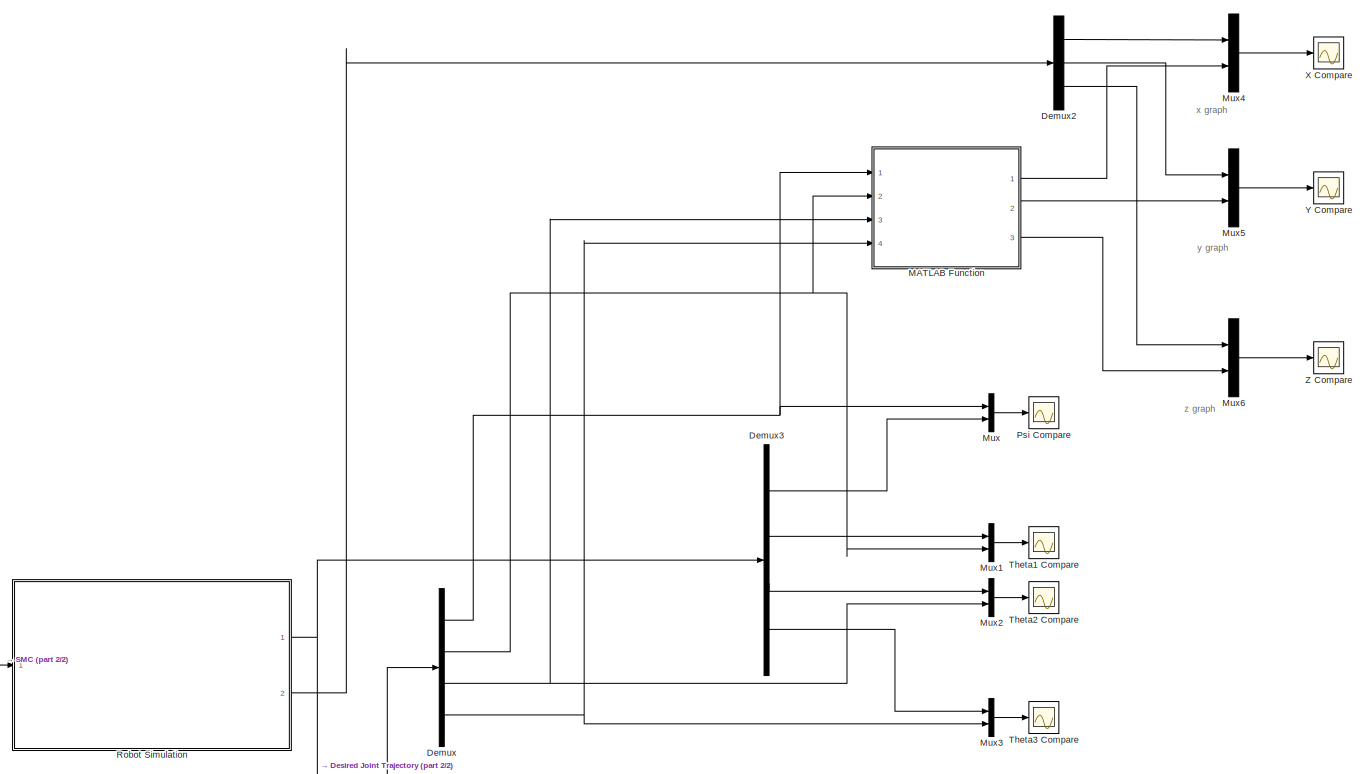
[diagram: root canvas - part 1/2, most of the canvas]
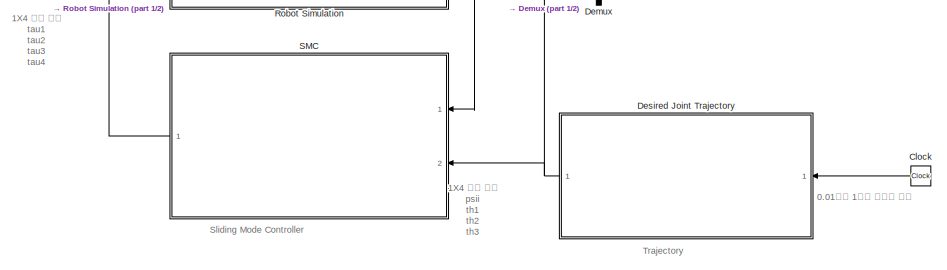
[diagram: root canvas - part 2/2, bottom left region]
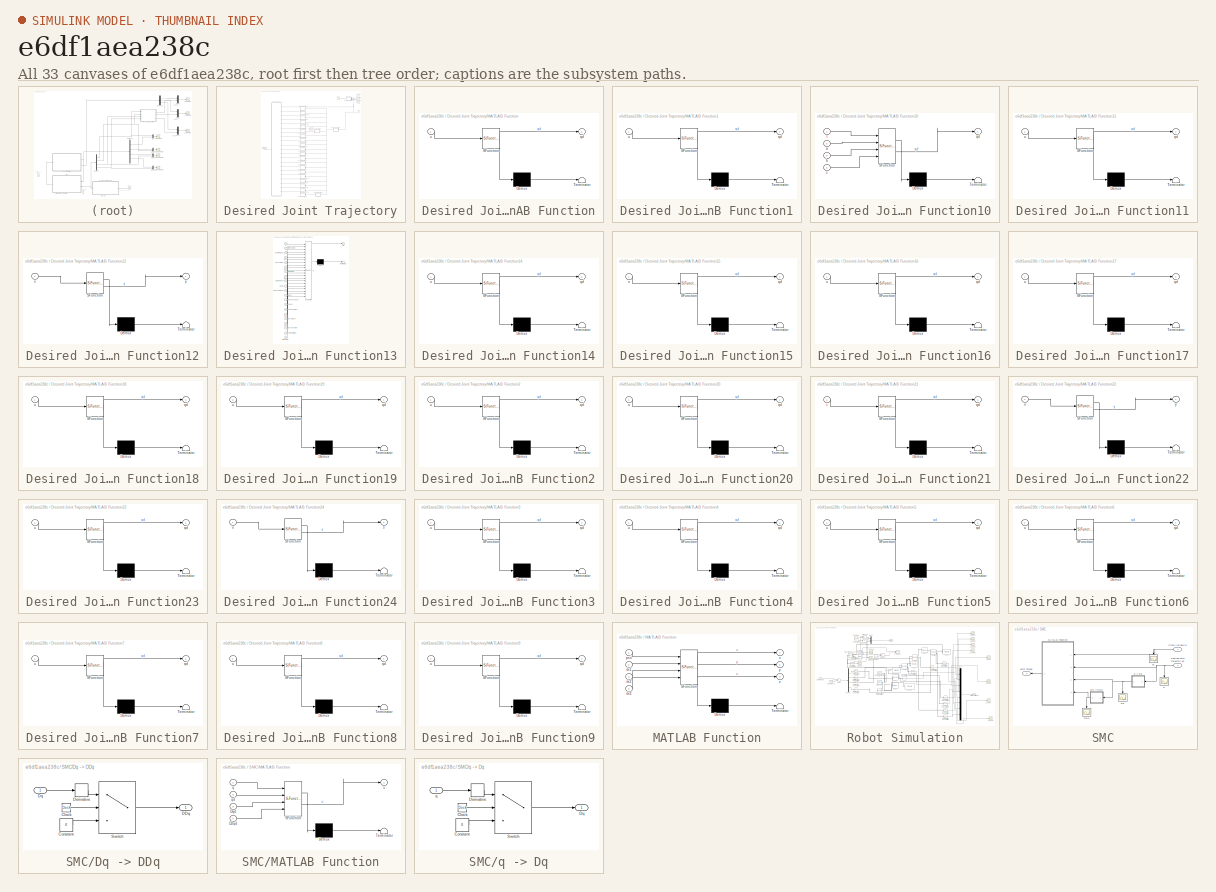
[diagram: thumbnail index - all 33 canvases of the model, root first then tree order]
MODEL slx_e6df1aea238c
KIND model
CONFIG AbsTol = auto
CONFIG EnableMultiTasking = off
CONFIG FixedStep = 0.001
CONFIG MaxStep = auto
CONFIG MinStep = auto
CONFIG RelTol = 1e-3
CONFIG SampleTimeConstraint = Unconstrained
CONFIG Solver = ode4
CONFIG SolverName = ode4
CONFIG StartTime = 0.0
CONFIG StopTime = 40
BLOCK [Clock] Clock
  DisplayTime = on
BLOCK [Demux] Demux
  DisplayOption = bar
  Ports = [1, 4]
BLOCK [Demux] Demux2
  DisplayOption = bar
  Outputs = 3
  Ports = [1, 3]
BLOCK [Demux] Demux3
  DisplayOption = bar
  Ports = [1, 4]
BLOCK [SubSystem] Desired Joint Trajectory
  Ports = [1, 1]
  RequestExecContextInheritance = off
BLOCK [Constant] Desired Joint Trajectory/Constant
BLOCK [Constant] Desired Joint Trajectory/Constant1
  Value = 2
BLOCK [Constant] Desired Joint Trajectory/Constant2
  Value = 3
BLOCK [Outport] Desired Joint Trajectory/Desired Joint Trajectory qd
  IconDisplay = Port number
BLOCK [SubSystem] Desired Joint Trajectory/MATLAB Function
  ErrorFcn = Stateflow.Translate.translate
  PermitHierarchicalResolution = ExplicitOnly
  Ports = [1, 1]
  RequestExecContextInheritance = off
  SFBlockType = MATLAB Function
  TreatAsAtomicUnit = on
BLOCK [Demux] Desired Joint Trajectory/MATLAB Function/ Demux 
  DisplayOption = bar
  Outputs = 1
  Ports = [1, 1]
BLOCK [S-Function] Desired Joint Trajectory/MATLAB Function/ SFunction 
  EnableBusSupport = on
  FunctionName = sf_sfun
  PortCounts = [1 2]
  Ports = [1, 2]
  SFcnIsStateOwnerBlock = off
  SFunctionDeploymentMode = off
  Tag = Stateflow S-Function total_senario 3
BLOCK [Terminator] Desired Joint Trajectory/MATLAB Function/ Terminator 
BLOCK [Outport] Desired Joint Trajectory/MATLAB Function/qd
  IconDisplay = Port number
BLOCK [Inport] Desired Joint Trajectory/MATLAB Function/u
  IconDisplay = Port number
BLOCK [SubSystem] Desired Joint Trajectory/MATLAB Function1
  ErrorFcn = Stateflow.Translate.translate
  PermitHierarchicalResolution = ExplicitOnly
  Ports = [1, 1]
  RequestExecContextInheritance = off
  SFBlockType = MATLAB Function
  TreatAsAtomicUnit = on
BLOCK [Demux] Desired Joint Trajectory/MATLAB Function1/ Demux 
  DisplayOption = bar
  Outputs = 1
  Ports = [1, 1]
BLOCK [S-Function] Desired Joint Trajectory/MATLAB Function1/ SFunction 
  EnableBusSupport = on
  FunctionName = sf_sfun
  PortCounts = [1 2]
  Ports = [1, 2]
  SFcnIsStateOwnerBlock = off
  SFunctionDeploymentMode = off
  Tag = Stateflow S-Function total_senario 1
BLOCK [Terminator] Desired Joint Trajectory/MATLAB Function1/ Terminator 
BLOCK [Outport] Desired Joint Trajectory/MATLAB Function1/qd
  IconDisplay = Port number
BLOCK [Inport] Desired Joint Trajectory/MATLAB Function1/u
  IconDisplay = Port number
BLOCK [SubSystem] Desired Joint Trajectory/MATLAB Function10
  ErrorFcn = Stateflow.Translate.translate
  PermitHierarchicalResolution = ExplicitOnly
  Ports = [4, 1]
  RequestExecContextInheritance = off
  SFBlockType = MATLAB Function
  TreatAsAtomicUnit = on
BLOCK [Demux] Desired Joint Trajectory/MATLAB Function10/ Demux 
  DisplayOption = bar
  Outputs = 1
  Ports = [1, 1]
BLOCK [S-Function] Desired Joint Trajectory/MATLAB Function10/ SFunction 
  EnableBusSupport = on
  FunctionName = sf_sfun
  PortCounts = [4 2]
  Ports = [4, 2]
  SFcnIsStateOwnerBlock = off
  SFunctionDeploymentMode = off
  Tag = Stateflow S-Function total_senario 12
BLOCK [Terminator] Desired Joint Trajectory/MATLAB Function10/ Terminator 
BLOCK [Inport] Desired Joint Trajectory/MATLAB Function10/a
  IconDisplay = Port number
  Port = 2
BLOCK [Inport] Desired Joint Trajectory/MATLAB Function10/b
  IconDisplay = Port number
  Port = 3
BLOCK [Inport] Desired Joint Trajectory/MATLAB Function10/c
  IconDisplay = Port number
  Port = 4
BLOCK [Outport] Desired Joint Trajectory/MATLAB Function10/qd
  IconDisplay = Port number
  VectorParamsAs1DForOutWhenUnconnected = on
BLOCK [Inport] Desired Joint Trajectory/MATLAB Function10/t
  IconDisplay = Port number
BLOCK [SubSystem] Desired Joint Trajectory/MATLAB Function11
  ErrorFcn = Stateflow.Translate.translate
  PermitHierarchicalResolution = ExplicitOnly
  Ports = [1, 1]
  RequestExecContextInheritance = off
  SFBlockType = MATLAB Function
  TreatAsAtomicUnit = on
BLOCK [Demux] Desired Joint Trajectory/MATLAB Function11/ Demux 
  DisplayOption = bar
  Outputs = 1
  Ports = [1, 1]
BLOCK [S-Function] Desired Joint Trajectory/MATLAB Function11/ SFunction 
  EnableBusSupport = on
  FunctionName = sf_sfun
  PortCounts = [1 2]
  Ports = [1, 2]
  SFcnIsStateOwnerBlock = off
  SFunctionDeploymentMode = off
  Tag = Stateflow S-Function total_senario 13
BLOCK [Terminator] Desired Joint Trajectory/MATLAB Function11/ Terminator 
BLOCK [Outport] Desired Joint Trajectory/MATLAB Function11/qd
  IconDisplay = Port number
BLOCK [Inport] Desired Joint Trajectory/MATLAB Function11/u
  IconDisplay = Port number
BLOCK [SubSystem] Desired Joint Trajectory/MATLAB Function12
  ErrorFcn = Stateflow.Translate.translate
  PermitHierarchicalResolution = ExplicitOnly
  Ports = [1, 1]
  RequestExecContextInheritance = off
  SFBlockType = MATLAB Function
  TreatAsAtomicUnit = on
BLOCK [Demux] Desired Joint Trajectory/MATLAB Function12/ Demux 
  DisplayOption = bar
  Outputs = 1
  Ports = [1, 1]
BLOCK [S-Function] Desired Joint Trajectory/MATLAB Function12/ SFunction 
  EnableBusSupport = on
  FunctionName = sf_sfun
  PortCounts = [1 2]
  Ports = [1, 2]
  SFcnIsStateOwnerBlock = off
  SFunctionDeploymentMode = off
  Tag = Stateflow S-Function total_senario 14
BLOCK [Terminator] Desired Joint Trajectory/MATLAB Function12/ Terminator 
BLOCK [Inport] Desired Joint Trajectory/MATLAB Function12/u
  IconDisplay = Port number
BLOCK [Outport] Desired Joint Trajectory/MATLAB Function12/y
  IconDisplay = Port number
  VectorParamsAs1DForOutWhenUnconnected = on
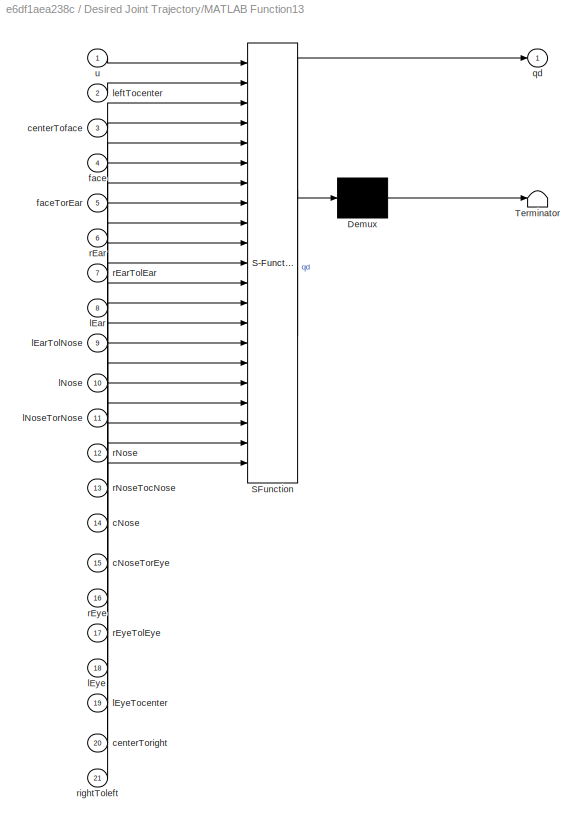
BLOCK [SubSystem] Desired Joint Trajectory/MATLAB Function13
  ErrorFcn = Stateflow.Translate.translate
  PermitHierarchicalResolution = ExplicitOnly
  Ports = [21, 1]
  RequestExecContextInheritance = off
  SFBlockType = MATLAB Function
  TreatAsAtomicUnit = on
BLOCK [Demux] Desired Joint Trajectory/MATLAB Function13/ Demux 
  DisplayOption = bar
  Outputs = 1
  Ports = [1, 1]
BLOCK [S-Function] Desired Joint Trajectory/MATLAB Function13/ SFunction 
  EnableBusSupport = on
  FunctionName = sf_sfun
  PortCounts = [21 2]
  Ports = [21, 2]
  SFcnIsStateOwnerBlock = off
  SFunctionDeploymentMode = off
  Tag = Stateflow S-Function total_senario 15
BLOCK [Terminator] Desired Joint Trajectory/MATLAB Function13/ Terminator 
BLOCK [Inport] Desired Joint Trajectory/MATLAB Function13/cNose
  IconDisplay = Port number
  Port = 14
BLOCK [Inport] Desired Joint Trajectory/MATLAB Function13/cNoseTorEye
  IconDisplay = Port number
  Port = 15
BLOCK [Inport] Desired Joint Trajectory/MATLAB Function13/centerToface
  IconDisplay = Port number
  Port = 3
BLOCK [Inport] Desired Joint Trajectory/MATLAB Function13/centerToright
  IconDisplay = Port number
  Port = 20
BLOCK [Inport] Desired Joint Trajectory/MATLAB Function13/face
  IconDisplay = Port number
  Port = 4
BLOCK [Inport] Desired Joint Trajectory/MATLAB Function13/faceTorEar
  IconDisplay = Port number
  Port = 5
BLOCK [Inport] Desired Joint Trajectory/MATLAB Function13/lEar
  IconDisplay = Port number
  Port = 8
BLOCK [Inport] Desired Joint Trajectory/MATLAB Function13/lEarTolNose
  IconDisplay = Port number
  Port = 9
BLOCK [Inport] Desired Joint Trajectory/MATLAB Function13/lEye
  IconDisplay = Port number
  Port = 18
BLOCK [Inport] Desired Joint Trajectory/MATLAB Function13/lEyeTocenter
  IconDisplay = Port number
  Port = 19
BLOCK [Inport] Desired Joint Trajectory/MATLAB Function13/lNose
  IconDisplay = Port number
  Port = 10
BLOCK [Inport] Desired Joint Trajectory/MATLAB Function13/lNoseTorNose
  IconDisplay = Port number
  Port = 11
BLOCK [Inport] Desired Joint Trajectory/MATLAB Function13/leftTocenter
  IconDisplay = Port number
  Port = 2
BLOCK [Outport] Desired Joint Trajectory/MATLAB Function13/qd
  IconDisplay = Port number
BLOCK [Inport] Desired Joint Trajectory/MATLAB Function13/rEar
  IconDisplay = Port number
  Port = 6
BLOCK [Inport] Desired Joint Trajectory/MATLAB Function13/rEarTolEar
  IconDisplay = Port number
  Port = 7
BLOCK [Inport] Desired Joint Trajectory/MATLAB Function13/rEye
  IconDisplay = Port number
  Port = 16
BLOCK [Inport] Desired Joint Trajectory/MATLAB Function13/rEyeTolEye
  IconDisplay = Port number
  Port = 17
BLOCK [Inport] Desired Joint Trajectory/MATLAB Function13/rNose
  IconDisplay = Port number
  Port = 12
BLOCK [Inport] Desired Joint Trajectory/MATLAB Function13/rNoseTocNose
  IconDisplay = Port number
  Port = 13
BLOCK [Inport] Desired Joint Trajectory/MATLAB Function13/rightToleft
  IconDisplay = Port number
  Port = 21
BLOCK [Inport] Desired Joint Trajectory/MATLAB Function13/u
  IconDisplay = Port number
BLOCK [SubSystem] Desired Joint Trajectory/MATLAB Function14
  ErrorFcn = Stateflow.Translate.translate
  PermitHierarchicalResolution = ExplicitOnly
  Ports = [1, 1]
  RequestExecContextInheritance = off
  SFBlockType = MATLAB Function
  TreatAsAtomicUnit = on
BLOCK [Demux] Desired Joint Trajectory/MATLAB Function14/ Demux 
  DisplayOption = bar
  Outputs = 1
  Ports = [1, 1]
BLOCK [S-Function] Desired Joint Trajectory/MATLAB Function14/ SFunction 
  EnableBusSupport = on
  FunctionName = sf_sfun
  PortCounts = [1 2]
  Ports = [1, 2]
  SFcnIsStateOwnerBlock = off
  SFunctionDeploymentMode = off
  Tag = Stateflow S-Function total_senario 16
BLOCK [Terminator] Desired Joint Trajectory/MATLAB Function14/ Terminator 
BLOCK [Outport] Desired Joint Trajectory/MATLAB Function14/qd
  IconDisplay = Port number
BLOCK [Inport] Desired Joint Trajectory/MATLAB Function14/u
  IconDisplay = Port number
BLOCK [SubSystem] Desired Joint Trajectory/MATLAB Function15
  ErrorFcn = Stateflow.Translate.translate
  PermitHierarchicalResolution = ExplicitOnly
  Ports = [1, 1]
  RequestExecContextInheritance = off
  SFBlockType = MATLAB Function
  TreatAsAtomicUnit = on
BLOCK [Demux] Desired Joint Trajectory/MATLAB Function15/ Demux 
  DisplayOption = bar
  Outputs = 1
  Ports = [1, 1]
BLOCK [S-Function] Desired Joint Trajectory/MATLAB Function15/ SFunction 
  EnableBusSupport = on
  FunctionName = sf_sfun
  PortCounts = [1 2]
  Ports = [1, 2]
  SFcnIsStateOwnerBlock = off
  SFunctionDeploymentMode = off
  Tag = Stateflow S-Function total_senario 17
BLOCK [Terminator] Desired Joint Trajectory/MATLAB Function15/ Terminator 
BLOCK [Outport] Desired Joint Trajectory/MATLAB Function15/qd
  IconDisplay = Port number
BLOCK [Inport] Desired Joint Trajectory/MATLAB Function15/u
  IconDisplay = Port number
BLOCK [SubSystem] Desired Joint Trajectory/MATLAB Function16
  ErrorFcn = Stateflow.Translate.translate
  PermitHierarchicalResolution = ExplicitOnly
  Ports = [1, 1]
  RequestExecContextInheritance = off
  SFBlockType = MATLAB Function
  TreatAsAtomicUnit = on
BLOCK [Demux] Desired Joint Trajectory/MATLAB Function16/ Demux 
  DisplayOption = bar
  Outputs = 1
  Ports = [1, 1]
BLOCK [S-Function] Desired Joint Trajectory/MATLAB Function16/ SFunction 
  EnableBusSupport = on
  FunctionName = sf_sfun
  PortCounts = [1 2]
  Ports = [1, 2]
  SFcnIsStateOwnerBlock = off
  SFunctionDeploymentMode = off
  Tag = Stateflow S-Function total_senario 18
BLOCK [Terminator] Desired Joint Trajectory/MATLAB Function16/ Terminator 
BLOCK [Outport] Desired Joint Trajectory/MATLAB Function16/qd
  IconDisplay = Port number
BLOCK [Inport] Desired Joint Trajectory/MATLAB Function16/u
  IconDisplay = Port number
BLOCK [SubSystem] Desired Joint Trajectory/MATLAB Function17
  ErrorFcn = Stateflow.Translate.translate
  PermitHierarchicalResolution = ExplicitOnly
  Ports = [1, 1]
  RequestExecContextInheritance = off
  SFBlockType = MATLAB Function
  TreatAsAtomicUnit = on
BLOCK [Demux] Desired Joint Trajectory/MATLAB Function17/ Demux 
  DisplayOption = bar
  Outputs = 1
  Ports = [1, 1]
BLOCK [S-Function] Desired Joint Trajectory/MATLAB Function17/ SFunction 
  EnableBusSupport = on
  FunctionName = sf_sfun
  PortCounts = [1 2]
  Ports = [1, 2]
  SFcnIsStateOwnerBlock = off
  SFunctionDeploymentMode = off
  Tag = Stateflow S-Function total_senario 19
BLOCK [Terminator] Desired Joint Trajectory/MATLAB Function17/ Terminator 
BLOCK [Outport] Desired Joint Trajectory/MATLAB Function17/qd
  IconDisplay = Port number
BLOCK [Inport] Desired Joint Trajectory/MATLAB Function17/u
  IconDisplay = Port number
BLOCK [SubSystem] Desired Joint Trajectory/MATLAB Function18
  ErrorFcn = Stateflow.Translate.translate
  PermitHierarchicalResolution = ExplicitOnly
  Ports = [1, 1]
  RequestExecContextInheritance = off
  SFBlockType = MATLAB Function
  TreatAsAtomicUnit = on
BLOCK [Demux] Desired Joint Trajectory/MATLAB Function18/ Demux 
  DisplayOption = bar
  Outputs = 1
  Ports = [1, 1]
BLOCK [S-Function] Desired Joint Trajectory/MATLAB Function18/ SFunction 
  EnableBusSupport = on
  FunctionName = sf_sfun
  PortCounts = [1 2]
  Ports = [1, 2]
  SFcnIsStateOwnerBlock = off
  SFunctionDeploymentMode = off
  Tag = Stateflow S-Function total_senario 20
BLOCK [Terminator] Desired Joint Trajectory/MATLAB Function18/ Terminator 
BLOCK [Outport] Desired Joint Trajectory/MATLAB Function18/qd
  IconDisplay = Port number
BLOCK [Inport] Desired Joint Trajectory/MATLAB Function18/u
  IconDisplay = Port number
BLOCK [SubSystem] Desired Joint Trajectory/MATLAB Function19
  ErrorFcn = Stateflow.Translate.translate
  PermitHierarchicalResolution = ExplicitOnly
  Ports = [1, 1]
  RequestExecContextInheritance = off
  SFBlockType = MATLAB Function
  TreatAsAtomicUnit = on
BLOCK [Demux] Desired Joint Trajectory/MATLAB Function19/ Demux 
  DisplayOption = bar
  Outputs = 1
  Ports = [1, 1]
BLOCK [S-Function] Desired Joint Trajectory/MATLAB Function19/ SFunction 
  EnableBusSupport = on
  FunctionName = sf_sfun
  PortCounts = [1 2]
  Ports = [1, 2]
  SFcnIsStateOwnerBlock = off
  SFunctionDeploymentMode = off
  Tag = Stateflow S-Function total_senario 21
BLOCK [Terminator] Desired Joint Trajectory/MATLAB Function19/ Terminator 
BLOCK [Outport] Desired Joint Trajectory/MATLAB Function19/qd
  IconDisplay = Port number
BLOCK [Inport] Desired Joint Trajectory/MATLAB Function19/u
  IconDisplay = Port number
BLOCK [SubSystem] Desired Joint Trajectory/MATLAB Function2
  ErrorFcn = Stateflow.Translate.translate
  PermitHierarchicalResolution = ExplicitOnly
  Ports = [1, 1]
  RequestExecContextInheritance = off
  SFBlockType = MATLAB Function
  TreatAsAtomicUnit = on
BLOCK [Demux] Desired Joint Trajectory/MATLAB Function2/ Demux 
  DisplayOption = bar
  Outputs = 1
  Ports = [1, 1]
BLOCK [S-Function] Desired Joint Trajectory/MATLAB Function2/ SFunction 
  EnableBusSupport = on
  FunctionName = sf_sfun
  PortCounts = [1 2]
  Ports = [1, 2]
  SFcnIsStateOwnerBlock = off
  SFunctionDeploymentMode = off
  Tag = Stateflow S-Function total_senario 4
BLOCK [Terminator] Desired Joint Trajectory/MATLAB Function2/ Terminator 
BLOCK [Outport] Desired Joint Trajectory/MATLAB Function2/qd
  IconDisplay = Port number
BLOCK [Inport] Desired Joint Trajectory/MATLAB Function2/u
  IconDisplay = Port number
BLOCK [SubSystem] Desired Joint Trajectory/MATLAB Function20
  ErrorFcn = Stateflow.Translate.translate
  PermitHierarchicalResolution = ExplicitOnly
  Ports = [1, 1]
  RequestExecContextInheritance = off
  SFBlockType = MATLAB Function
  TreatAsAtomicUnit = on
BLOCK [Demux] Desired Joint Trajectory/MATLAB Function20/ Demux 
  DisplayOption = bar
  Outputs = 1
  Ports = [1, 1]
BLOCK [S-Function] Desired Joint Trajectory/MATLAB Function20/ SFunction 
  EnableBusSupport = on
  FunctionName = sf_sfun
  PortCounts = [1 2]
  Ports = [1, 2]
  SFcnIsStateOwnerBlock = off
  SFunctionDeploymentMode = off
  Tag = Stateflow S-Function total_senario 22
BLOCK [Terminator] Desired Joint Trajectory/MATLAB Function20/ Terminator 
BLOCK [Outport] Desired Joint Trajectory/MATLAB Function20/qd
  IconDisplay = Port number
BLOCK [Inport] Desired Joint Trajectory/MATLAB Function20/u
  IconDisplay = Port number
BLOCK [SubSystem] Desired Joint Trajectory/MATLAB Function21
  ErrorFcn = Stateflow.Translate.translate
  PermitHierarchicalResolution = ExplicitOnly
  Ports = [1, 1]
  RequestExecContextInheritance = off
  SFBlockType = MATLAB Function
  TreatAsAtomicUnit = on
BLOCK [Demux] Desired Joint Trajectory/MATLAB Function21/ Demux 
  DisplayOption = bar
  Outputs = 1
  Ports = [1, 1]
BLOCK [S-Function] Desired Joint Trajectory/MATLAB Function21/ SFunction 
  EnableBusSupport = on
  FunctionName = sf_sfun
  PortCounts = [1 2]
  Ports = [1, 2]
  SFcnIsStateOwnerBlock = off
  SFunctionDeploymentMode = off
  Tag = Stateflow S-Function total_senario 23
BLOCK [Terminator] Desired Joint Trajectory/MATLAB Function21/ Terminator 
BLOCK [Outport] Desired Joint Trajectory/MATLAB Function21/qd
  IconDisplay = Port number
BLOCK [Inport] Desired Joint Trajectory/MATLAB Function21/t
  IconDisplay = Port number
BLOCK [SubSystem] Desired Joint Trajectory/MATLAB Function22
  ErrorFcn = Stateflow.Translate.translate
  PermitHierarchicalResolution = ExplicitOnly
  Ports = [1, 1]
  RequestExecContextInheritance = off
  SFBlockType = MATLAB Function
  TreatAsAtomicUnit = on
BLOCK [Demux] Desired Joint Trajectory/MATLAB Function22/ Demux 
  DisplayOption = bar
  Outputs = 1
  Ports = [1, 1]
BLOCK [S-Function] Desired Joint Trajectory/MATLAB Function22/ SFunction 
  EnableBusSupport = on
  FunctionName = sf_sfun
  PortCounts = [1 2]
  Ports = [1, 2]
  SFcnIsStateOwnerBlock = off
  SFunctionDeploymentMode = off
  Tag = Stateflow S-Function total_senario 24
BLOCK [Terminator] Desired Joint Trajectory/MATLAB Function22/ Terminator 
BLOCK [Inport] Desired Joint Trajectory/MATLAB Function22/u
  IconDisplay = Port number
BLOCK [Outport] Desired Joint Trajectory/MATLAB Function22/y
  IconDisplay = Port number
  VectorParamsAs1DForOutWhenUnconnected = on
BLOCK [SubSystem] Desired Joint Trajectory/MATLAB Function23
  ErrorFcn = Stateflow.Translate.translate
  PermitHierarchicalResolution = ExplicitOnly
  Ports = [1, 1]
  RequestExecContextInheritance = off
  SFBlockType = MATLAB Function
  TreatAsAtomicUnit = on
BLOCK [Demux] Desired Joint Trajectory/MATLAB Function23/ Demux 
  DisplayOption = bar
  Outputs = 1
  Ports = [1, 1]
BLOCK [S-Function] Desired Joint Trajectory/MATLAB Function23/ SFunction 
  EnableBusSupport = on
  FunctionName = sf_sfun
  PortCounts = [1 2]
  Ports = [1, 2]
  SFcnIsStateOwnerBlock = off
  SFunctionDeploymentMode = off
  Tag = Stateflow S-Function total_senario 25
BLOCK [Terminator] Desired Joint Trajectory/MATLAB Function23/ Terminator 
BLOCK [Outport] Desired Joint Trajectory/MATLAB Function23/qd
  IconDisplay = Port number
BLOCK [Inport] Desired Joint Trajectory/MATLAB Function23/u
  IconDisplay = Port number
BLOCK [SubSystem] Desired Joint Trajectory/MATLAB Function24
  ErrorFcn = Stateflow.Translate.translate
  PermitHierarchicalResolution = ExplicitOnly
  Ports = [1, 1]
  RequestExecContextInheritance = off
  SFBlockType = MATLAB Function
  TreatAsAtomicUnit = on
BLOCK [Demux] Desired Joint Trajectory/MATLAB Function24/ Demux 
  DisplayOption = bar
  Outputs = 1
  Ports = [1, 1]
BLOCK [S-Function] Desired Joint Trajectory/MATLAB Function24/ SFunction 
  EnableBusSupport = on
  FunctionName = sf_sfun
  PortCounts = [1 2]
  Ports = [1, 2]
  SFcnIsStateOwnerBlock = off
  SFunctionDeploymentMode = off
  Tag = Stateflow S-Function total_senario 26
BLOCK [Terminator] Desired Joint Trajectory/MATLAB Function24/ Terminator 
BLOCK [Outport] Desired Joint Trajectory/MATLAB Function24/s
  IconDisplay = Port number
  VectorParamsAs1DForOutWhenUnconnected = on
BLOCK [Inport] Desired Joint Trajectory/MATLAB Function24/u
  IconDisplay = Port number
BLOCK [SubSystem] Desired Joint Trajectory/MATLAB Function3
  ErrorFcn = Stateflow.Translate.translate
  PermitHierarchicalResolution = ExplicitOnly
  Ports = [1, 1]
  RequestExecContextInheritance = off
  SFBlockType = MATLAB Function
  TreatAsAtomicUnit = on
BLOCK [Demux] Desired Joint Trajectory/MATLAB Function3/ Demux 
  DisplayOption = bar
  Outputs = 1
  Ports = [1, 1]
BLOCK [S-Function] Desired Joint Trajectory/MATLAB Function3/ SFunction 
  EnableBusSupport = on
  FunctionName = sf_sfun
  PortCounts = [1 2]
  Ports = [1, 2]
  SFcnIsStateOwnerBlock = off
  SFunctionDeploymentMode = off
  Tag = Stateflow S-Function total_senario 5
BLOCK [Terminator] Desired Joint Trajectory/MATLAB Function3/ Terminator 
BLOCK [Outport] Desired Joint Trajectory/MATLAB Function3/qd
  IconDisplay = Port number
BLOCK [Inport] Desired Joint Trajectory/MATLAB Function3/u
  IconDisplay = Port number
BLOCK [SubSystem] Desired Joint Trajectory/MATLAB Function4
  ErrorFcn = Stateflow.Translate.translate
  PermitHierarchicalResolution = ExplicitOnly
  Ports = [1, 1]
  RequestExecContextInheritance = off
  SFBlockType = MATLAB Function
  TreatAsAtomicUnit = on
BLOCK [Demux] Desired Joint Trajectory/MATLAB Function4/ Demux 
  DisplayOption = bar
  Outputs = 1
  Ports = [1, 1]
BLOCK [S-Function] Desired Joint Trajectory/MATLAB Function4/ SFunction 
  EnableBusSupport = on
  FunctionName = sf_sfun
  PortCounts = [1 2]
  Ports = [1, 2]
  SFcnIsStateOwnerBlock = off
  SFunctionDeploymentMode = off
  Tag = Stateflow S-Function total_senario 6
BLOCK [Terminator] Desired Joint Trajectory/MATLAB Function4/ Terminator 
BLOCK [Outport] Desired Joint Trajectory/MATLAB Function4/qd
  IconDisplay = Port number
BLOCK [Inport] Desired Joint Trajectory/MATLAB Function4/u
  IconDisplay = Port number
BLOCK [SubSystem] Desired Joint Trajectory/MATLAB Function5
  ErrorFcn = Stateflow.Translate.translate
  PermitHierarchicalResolution = ExplicitOnly
  Ports = [1, 1]
  RequestExecContextInheritance = off
  SFBlockType = MATLAB Function
  TreatAsAtomicUnit = on
BLOCK [Demux] Desired Joint Trajectory/MATLAB Function5/ Demux 
  DisplayOption = bar
  Outputs = 1
  Ports = [1, 1]
BLOCK [S-Function] Desired Joint Trajectory/MATLAB Function5/ SFunction 
  EnableBusSupport = on
  FunctionName = sf_sfun
  PortCounts = [1 2]
  Ports = [1, 2]
  SFcnIsStateOwnerBlock = off
  SFunctionDeploymentMode = off
  Tag = Stateflow S-Function total_senario 7
BLOCK [Terminator] Desired Joint Trajectory/MATLAB Function5/ Terminator 
BLOCK [Outport] Desired Joint Trajectory/MATLAB Function5/qd
  IconDisplay = Port number
BLOCK [Inport] Desired Joint Trajectory/MATLAB Function5/u
  IconDisplay = Port number
BLOCK [SubSystem] Desired Joint Trajectory/MATLAB Function6
  ErrorFcn = Stateflow.Translate.translate
  PermitHierarchicalResolution = ExplicitOnly
  Ports = [1, 1]
  RequestExecContextInheritance = off
  SFBlockType = MATLAB Function
  TreatAsAtomicUnit = on
BLOCK [Demux] Desired Joint Trajectory/MATLAB Function6/ Demux 
  DisplayOption = bar
  Outputs = 1
  Ports = [1, 1]
BLOCK [S-Function] Desired Joint Trajectory/MATLAB Function6/ SFunction 
  EnableBusSupport = on
  FunctionName = sf_sfun
  PortCounts = [1 2]
  Ports = [1, 2]
  SFcnIsStateOwnerBlock = off
  SFunctionDeploymentMode = off
  Tag = Stateflow S-Function total_senario 8
BLOCK [Terminator] Desired Joint Trajectory/MATLAB Function6/ Terminator 
BLOCK [Outport] Desired Joint Trajectory/MATLAB Function6/qd
  IconDisplay = Port number
BLOCK [Inport] Desired Joint Trajectory/MATLAB Function6/u
  IconDisplay = Port number
BLOCK [SubSystem] Desired Joint Trajectory/MATLAB Function7
  ErrorFcn = Stateflow.Translate.translate
  PermitHierarchicalResolution = ExplicitOnly
  Ports = [1, 1]
  RequestExecContextInheritance = off
  SFBlockType = MATLAB Function
  TreatAsAtomicUnit = on
BLOCK [Demux] Desired Joint Trajectory/MATLAB Function7/ Demux 
  DisplayOption = bar
  Outputs = 1
  Ports = [1, 1]
BLOCK [S-Function] Desired Joint Trajectory/MATLAB Function7/ SFunction 
  EnableBusSupport = on
  FunctionName = sf_sfun
  PortCounts = [1 2]
  Ports = [1, 2]
  SFcnIsStateOwnerBlock = off
  SFunctionDeploymentMode = off
  Tag = Stateflow S-Function total_senario 9
BLOCK [Terminator] Desired Joint Trajectory/MATLAB Function7/ Terminator 
BLOCK [Outport] Desired Joint Trajectory/MATLAB Function7/qd
  IconDisplay = Port number
BLOCK [Inport] Desired Joint Trajectory/MATLAB Function7/u
  IconDisplay = Port number
BLOCK [SubSystem] Desired Joint Trajectory/MATLAB Function8
  ErrorFcn = Stateflow.Translate.translate
  PermitHierarchicalResolution = ExplicitOnly
  Ports = [1, 1]
  RequestExecContextInheritance = off
  SFBlockType = MATLAB Function
  TreatAsAtomicUnit = on
BLOCK [Demux] Desired Joint Trajectory/MATLAB Function8/ Demux 
  DisplayOption = bar
  Outputs = 1
  Ports = [1, 1]
BLOCK [S-Function] Desired Joint Trajectory/MATLAB Function8/ SFunction 
  EnableBusSupport = on
  FunctionName = sf_sfun
  PortCounts = [1 2]
  Ports = [1, 2]
  SFcnIsStateOwnerBlock = off
  SFunctionDeploymentMode = off
  Tag = Stateflow S-Function total_senario 10
BLOCK [Terminator] Desired Joint Trajectory/MATLAB Function8/ Terminator 
BLOCK [Outport] Desired Joint Trajectory/MATLAB Function8/qd
  IconDisplay = Port number
BLOCK [Inport] Desired Joint Trajectory/MATLAB Function8/u
  IconDisplay = Port number
BLOCK [SubSystem] Desired Joint Trajectory/MATLAB Function9
  ErrorFcn = Stateflow.Translate.translate
  PermitHierarchicalResolution = ExplicitOnly
  Ports = [1, 1]
  RequestExecContextInheritance = off
  SFBlockType = MATLAB Function
  TreatAsAtomicUnit = on
BLOCK [Demux] Desired Joint Trajectory/MATLAB Function9/ Demux 
  DisplayOption = bar
  Outputs = 1
  Ports = [1, 1]
BLOCK [S-Function] Desired Joint Trajectory/MATLAB Function9/ SFunction 
  EnableBusSupport = on
  FunctionName = sf_sfun
  PortCounts = [1 2]
  Ports = [1, 2]
  SFcnIsStateOwnerBlock = off
  SFunctionDeploymentMode = off
  Tag = Stateflow S-Function total_senario 11
BLOCK [Terminator] Desired Joint Trajectory/MATLAB Function9/ Terminator 
BLOCK [Outport] Desired Joint Trajectory/MATLAB Function9/qd
  IconDisplay = Port number
BLOCK [Inport] Desired Joint Trajectory/MATLAB Function9/u
  IconDisplay = Port number
BLOCK [Scope] Desired Joint Trajectory/Scope
  Floating = off
  NumInputPorts = 1
  Ports = [1]
  ScopeSpecificationString = Simulink.scopes.TimeScopeBlockCfg('CurrentConfiguration', extmgr.ConfigurationSet(extmgr.Configuration('Core','General UI',true),extmgr.Configuration('Core','Source UI',true),extmgr.Configuration('Sources','WiredSimulink',true,'DataLoggingVariableName','ScopeData1'),extmgr.Configuration('Visuals','Time Domain',true,'SerializedDisplays',{struct('MinYLimReal','0.625','MaxYLimReal','4.375','YLabelRea...<+1358ch>
BLOCK [Scope] Desired Joint Trajectory/Scope1
  Floating = off
  NumInputPorts = 1
  Ports = [1]
  ScopeSpecificationString = Simulink.scopes.TimeScopeBlockCfg('CurrentConfiguration', extmgr.ConfigurationSet(extmgr.Configuration('Core','General UI',true),extmgr.Configuration('Core','Source UI',true),extmgr.Configuration('Sources','WiredSimulink',true,'DataLoggingVariableName','ScopeData1'),extmgr.Configuration('Visuals','Time Domain',true,'SerializedDisplays',{struct('MinYLimReal','8.875','MaxYLimReal','10.125','YLabelRe...<+1372ch>
BLOCK [Inport] Desired Joint Trajectory/Time
  IconDisplay = Port number
BLOCK [SubSystem] MATLAB Function
  ErrorFcn = Stateflow.Translate.translate
  PermitHierarchicalResolution = ExplicitOnly
  Ports = [4, 3]
  RequestExecContextInheritance = off
  SFBlockType = MATLAB Function
  TreatAsAtomicUnit = on
BLOCK [Demux] MATLAB Function/ Demux 
  Outputs = 1
  Ports = [1, 1]
BLOCK [S-Function] MATLAB Function/ SFunction 
  EnableBusSupport = on
  FunctionName = sf_sfun
  PortCounts = [4 4]
  Ports = [4, 4]
  SFcnIsStateOwnerBlock = off
  SFunctionDeploymentMode = off
  Tag = Stateflow S-Function total_senario 28
BLOCK [Terminator] MATLAB Function/ Terminator 
BLOCK [Inport] MATLAB Function/psii
  IconDisplay = Port number
BLOCK [Inport] MATLAB Function/th1
  IconDisplay = Port number
  Port = 2
BLOCK [Inport] MATLAB Function/th2
  IconDisplay = Port number
  Port = 3
BLOCK [Inport] MATLAB Function/th3
  IconDisplay = Port number
  Port = 4
BLOCK [Outport] MATLAB Function/x
  IconDisplay = Port number
BLOCK [Outport] MATLAB Function/y
  IconDisplay = Port number
  Port = 2
BLOCK [Outport] MATLAB Function/z
  IconDisplay = Port number
  Port = 3
BLOCK [Mux] Mux
  DisplayOption = bar
  Inputs = 2
  Ports = [2, 1]
BLOCK [Mux] Mux1
  DisplayOption = bar
  Inputs = 2
  Ports = [2, 1]
BLOCK [Mux] Mux2
  DisplayOption = bar
  Inputs = 2
  Ports = [2, 1]
BLOCK [Mux] Mux3
  DisplayOption = bar
  Inputs = 2
  Ports = [2, 1]
BLOCK [Mux] Mux4
  DisplayOption = bar
  Inputs = 2
  Ports = [2, 1]
BLOCK [Mux] Mux5
  DisplayOption = bar
  Inputs = 2
  Ports = [2, 1]
BLOCK [Mux] Mux6
  DisplayOption = bar
  Inputs = 2
  Ports = [2, 1]
BLOCK [Scope] Psi Compare
  Floating = off
  NumInputPorts = 1
  Ports = [1]
  ScopeSpecificationString = Simulink.scopes.TimeScopeBlockCfg('CurrentConfiguration', extmgr.ConfigurationSet(extmgr.Configuration('Core','General UI',true),extmgr.Configuration('Core','Source UI',true),extmgr.Configuration('Sources','WiredSimulink',true,'DataLoggingVariableName','ScopeData1'),extmgr.Configuration('Visuals','Time Domain',true,'SerializedDisplays',{struct('MinYLimReal','0.58905','MaxYLimReal','2.55255','YLabe...<+1503ch>
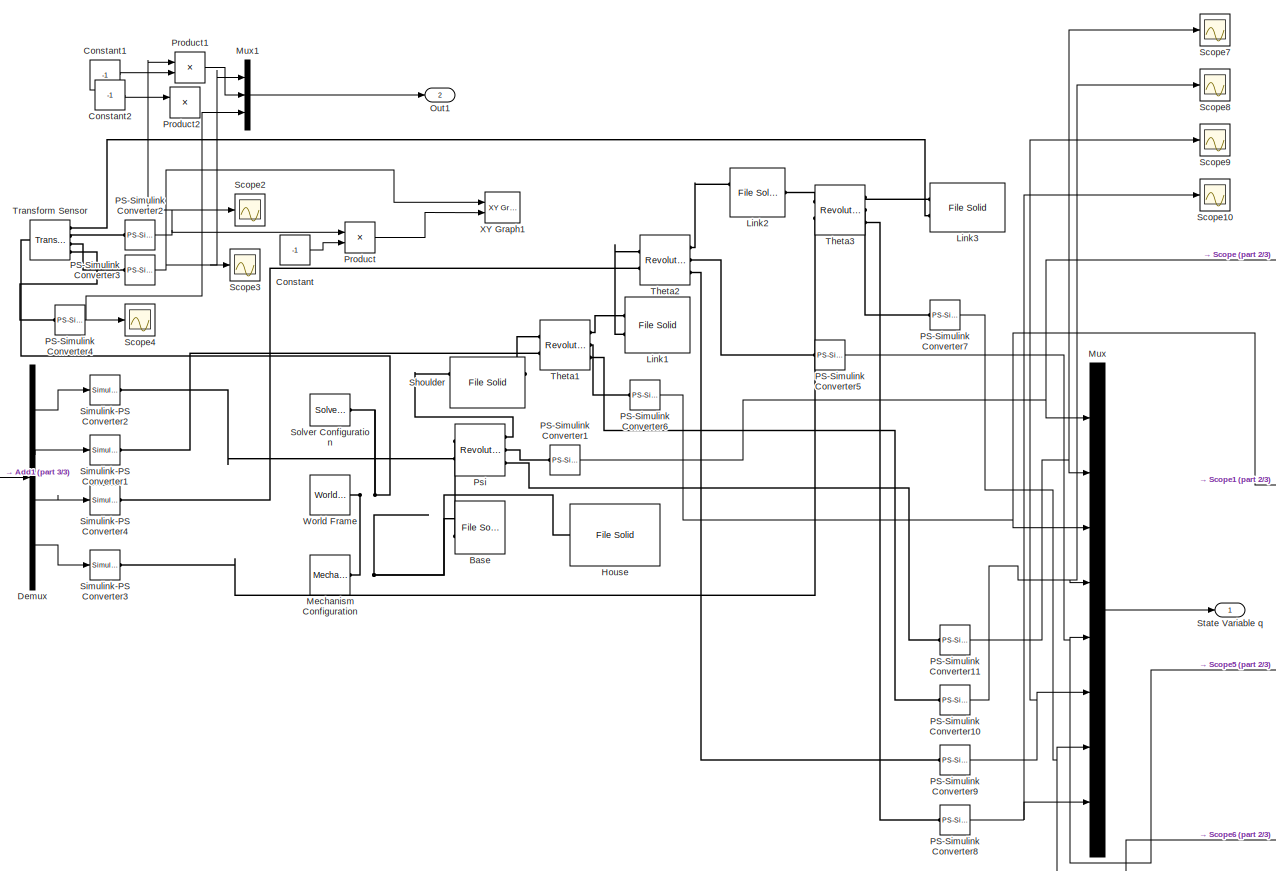
[diagram: Robot Simulation - part 1/3, most of the canvas]
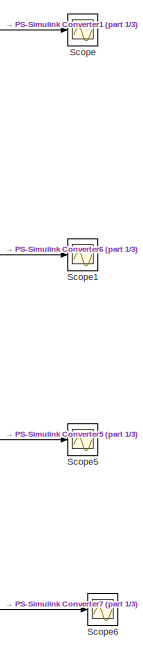
[diagram: Robot Simulation - part 2/3, middle right region]
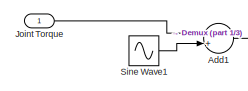
[diagram: Robot Simulation - part 3/3, middle left region]
BLOCK [SubSystem] Robot Simulation
  Ports = [1, 2]
  RequestExecContextInheritance = off
BLOCK [Sum] Robot Simulation/Add1
  InputSameDT = off
  OutDataTypeStr = Inherit: Inherit via internal rule
  Ports = [2, 1]
  SaturateOnIntegerOverflow = off
BLOCK [Reference] Robot Simulation/Base  REF=sm_lib/Body Elements/File Solid
  Ports = [0, 0, 0, 0, 0, 2, 1]
  SourceBlock = sm_lib/Body Elements/File Solid
  SourceProductBaseCode = MS
  SourceType = File Solid
BLOCK [Constant] Robot Simulation/Constant
  Value = -1
BLOCK [Constant] Robot Simulation/Constant1
  Value = -1
BLOCK [Constant] Robot Simulation/Constant2
  Value = -1
BLOCK [Demux] Robot Simulation/Demux
  DisplayOption = bar
  Ports = [1, 4]
BLOCK [Reference] Robot Simulation/House  REF=sm_lib/Body Elements/File Solid
  Ports = [0, 0, 0, 0, 0, 1]
  SourceBlock = sm_lib/Body Elements/File Solid
  SourceProductBaseCode = MS
  SourceType = File Solid
BLOCK [Inport] Robot Simulation/Joint Torque
  IconDisplay = Port number
BLOCK [Reference] Robot Simulation/Link1  REF=sm_lib/Body Elements/File Solid
  Ports = [0, 0, 0, 0, 0, 2, 1]
  SourceBlock = sm_lib/Body Elements/File Solid
  SourceProductBaseCode = MS
  SourceType = File Solid
BLOCK [Reference] Robot Simulation/Link2  REF=sm_lib/Body Elements/File Solid
  Ports = [0, 0, 0, 0, 0, 2, 1]
  SourceBlock = sm_lib/Body Elements/File Solid
  SourceProductBaseCode = MS
  SourceType = File Solid
BLOCK [Reference] Robot Simulation/Link3  REF=sm_lib/Body Elements/File Solid
  Ports = [0, 0, 0, 0, 0, 2, 1]
  SourceBlock = sm_lib/Body Elements/File Solid
  SourceProductBaseCode = MS
  SourceType = File Solid
BLOCK [Reference] Robot Simulation/Mechanism Configuration  REF=sm_lib/Utilities/Mechanism
Configuration
  Ports = [0, 0, 0, 0, 0, 0, 1]
  SourceBlock = sm_lib/Utilities/Mechanism\nConfiguration
  SourceProductBaseCode = MS
  SourceType = Mechanism\nConfiguration
BLOCK [Mux] Robot Simulation/Mux
  DisplayOption = bar
  Inputs = 8
  Ports = [8, 1]
BLOCK [Mux] Robot Simulation/Mux1
  DisplayOption = bar
  Inputs = 3
  Ports = [3, 1]
BLOCK [Outport] Robot Simulation/Out1
  IconDisplay = Port number
  Port = 2
BLOCK [Reference] Robot Simulation/PS-Simulink Converter1  REF=nesl_utility/PS-Simulink
Converter
  Ports = [0, 1, 0, 0, 0, 1]
  SourceBlock = nesl_utility/PS-Simulink\nConverter
  SourceProductBaseCode = PW,SS
  SourceType = PS-Simulink\nConverter
BLOCK [Reference] Robot Simulation/PS-Simulink Converter10  REF=nesl_utility/PS-Simulink
Converter
  Ports = [0, 1, 0, 0, 0, 1]
  SourceBlock = nesl_utility/PS-Simulink\nConverter
  SourceProductBaseCode = PW,SS
  SourceType = PS-Simulink\nConverter
BLOCK [Reference] Robot Simulation/PS-Simulink Converter11  REF=nesl_utility/PS-Simulink
Converter
  Ports = [0, 1, 0, 0, 0, 1]
  SourceBlock = nesl_utility/PS-Simulink\nConverter
  SourceProductBaseCode = PW,SS
  SourceType = PS-Simulink\nConverter
BLOCK [Reference] Robot Simulation/PS-Simulink Converter2  REF=nesl_utility/PS-Simulink
Converter
  Ports = [0, 1, 0, 0, 0, 1]
  SourceBlock = nesl_utility/PS-Simulink\nConverter
  SourceProductBaseCode = PW,SS
  SourceType = PS-Simulink\nConverter
BLOCK [Reference] Robot Simulation/PS-Simulink Converter3  REF=nesl_utility/PS-Simulink
Converter
  Ports = [0, 1, 0, 0, 0, 1]
  SourceBlock = nesl_utility/PS-Simulink\nConverter
  SourceProductBaseCode = PW,SS
  SourceType = PS-Simulink\nConverter
BLOCK [Reference] Robot Simulation/PS-Simulink Converter4  REF=nesl_utility/PS-Simulink
Converter
  Ports = [0, 1, 0, 0, 0, 1]
  SourceBlock = nesl_utility/PS-Simulink\nConverter
  SourceProductBaseCode = PW,SS
  SourceType = PS-Simulink\nConverter
BLOCK [Reference] Robot Simulation/PS-Simulink Converter5  REF=nesl_utility/PS-Simulink
Converter
  Ports = [0, 1, 0, 0, 0, 1]
  SourceBlock = nesl_utility/PS-Simulink\nConverter
  SourceProductBaseCode = PW,SS
  SourceType = PS-Simulink\nConverter
BLOCK [Reference] Robot Simulation/PS-Simulink Converter6  REF=nesl_utility/PS-Simulink
Converter
  Ports = [0, 1, 0, 0, 0, 1]
  SourceBlock = nesl_utility/PS-Simulink\nConverter
  SourceProductBaseCode = PW,SS
  SourceType = PS-Simulink\nConverter
BLOCK [Reference] Robot Simulation/PS-Simulink Converter7  REF=nesl_utility/PS-Simulink
Converter
  Ports = [0, 1, 0, 0, 0, 1]
  SourceBlock = nesl_utility/PS-Simulink\nConverter
  SourceProductBaseCode = PW,SS
  SourceType = PS-Simulink\nConverter
BLOCK [Reference] Robot Simulation/PS-Simulink Converter8  REF=nesl_utility/PS-Simulink
Converter
  Ports = [0, 1, 0, 0, 0, 1]
  SourceBlock = nesl_utility/PS-Simulink\nConverter
  SourceProductBaseCode = PW,SS
  SourceType = PS-Simulink\nConverter
BLOCK [Reference] Robot Simulation/PS-Simulink Converter9  REF=nesl_utility/PS-Simulink
Converter
  Ports = [0, 1, 0, 0, 0, 1]
  SourceBlock = nesl_utility/PS-Simulink\nConverter
  SourceProductBaseCode = PW,SS
  SourceType = PS-Simulink\nConverter
BLOCK [Product] Robot Simulation/Product
  InputSameDT = off
  OutDataTypeStr = Inherit: Inherit via internal rule
  Ports = [2, 1]
  RndMeth = Floor
  SaturateOnIntegerOverflow = off
BLOCK [Product] Robot Simulation/Product1
  InputSameDT = off
  OutDataTypeStr = Inherit: Inherit via internal rule
  Ports = [2, 1]
  RndMeth = Floor
  SaturateOnIntegerOverflow = off
BLOCK [Product] Robot Simulation/Product2
  InputSameDT = off
  OutDataTypeStr = Inherit: Inherit via internal rule
  Ports = [2, 1]
  RndMeth = Floor
  SaturateOnIntegerOverflow = off
BLOCK [Reference] Robot Simulation/Psi  REF=sm_lib/Joints/Revolute Joint
  Ports = [0, 0, 0, 0, 0, 2, 3]
  SourceBlock = sm_lib/Joints/Revolute Joint
  SourceProductBaseCode = MS
  SourceType = Revolute Joint
BLOCK [Scope] Robot Simulation/Scope
  Floating = off
  NumInputPorts = 1
  Ports = [1]
  ScopeSpecificationString = Simulink.scopes.TimeScopeBlockCfg('CurrentConfiguration', extmgr.ConfigurationSet(extmgr.Configuration('Core','General UI',true),extmgr.Configuration('Core','Source UI',true),extmgr.Configuration('Sources','WiredSimulink',true,'DataLoggingVariableName','ScopeData1'),extmgr.Configuration('Visuals','Time Domain',true,'SerializedDisplays',{struct('MinYLimReal','1.25285','MaxYLimReal','1.87029','YLabe...<+1456ch>
BLOCK [Scope] Robot Simulation/Scope1
  Floating = off
  NumInputPorts = 1
  Ports = [1]
  ScopeSpecificationString = Simulink.scopes.TimeScopeBlockCfg('CurrentConfiguration', extmgr.ConfigurationSet(extmgr.Configuration('Core','General UI',true),extmgr.Configuration('Core','Source UI',true),extmgr.Configuration('Sources','WiredSimulink',true,'DataLoggingVariableName','ScopeData2'),extmgr.Configuration('Visuals','Time Domain',true,'SerializedDisplays',{struct('MinYLimReal','-1.68719','MaxYLimReal','-0.61798','YLa...<+1409ch>
BLOCK [Scope] Robot Simulation/Scope10
  Floating = off
  NumInputPorts = 1
  Ports = [1]
  ScopeSpecificationString = Simulink.scopes.TimeScopeBlockCfg('CurrentConfiguration', extmgr.ConfigurationSet(extmgr.Configuration('Core','General UI',true),extmgr.Configuration('Core','Source UI',true),extmgr.Configuration('Sources','WiredSimulink',true,'DataLoggingVariableName','ScopeData4'),extmgr.Configuration('Visuals','Time Domain',true,'SerializedDisplays',{struct('MinYLimReal','-0.94557','MaxYLimReal','0.6257','YLabe...<+1455ch>
BLOCK [Scope] Robot Simulation/Scope2
  Floating = off
  NumInputPorts = 1
  Ports = [1]
  ScopeSpecificationString = Simulink.scopes.TimeScopeBlockCfg('CurrentConfiguration', extmgr.ConfigurationSet(extmgr.Configuration('Core','General UI',true),extmgr.Configuration('Core','Source UI',true),extmgr.Configuration('Sources','WiredSimulink',true,'DataLoggingVariableName','ScopeData2'),extmgr.Configuration('Visuals','Time Domain',true,'SerializedDisplays',{struct('MinYLimReal','-0.37571','MaxYLimReal','-0.15665','YLa...<+1412ch>
BLOCK [Scope] Robot Simulation/Scope3
  Floating = off
  NumInputPorts = 1
  Ports = [1]
  ScopeSpecificationString = Simulink.scopes.TimeScopeBlockCfg('CurrentConfiguration', extmgr.ConfigurationSet(extmgr.Configuration('Core','General UI',true),extmgr.Configuration('Core','Source UI',true),extmgr.Configuration('Sources','WiredSimulink',true,'DataLoggingVariableName','ScopeData3'),extmgr.Configuration('Visuals','Time Domain',true,'SerializedDisplays',{struct('MinYLimReal','-0.44203','MaxYLimReal','0.44168','YLab...<+1410ch>
BLOCK [Scope] Robot Simulation/Scope4
  Floating = off
  NumInputPorts = 1
  Ports = [1]
  ScopeSpecificationString = Simulink.scopes.TimeScopeBlockCfg('CurrentConfiguration', extmgr.ConfigurationSet(extmgr.Configuration('Core','General UI',true),extmgr.Configuration('Core','Source UI',true),extmgr.Configuration('Sources','WiredSimulink',true,'DataLoggingVariableName','ScopeData4'),extmgr.Configuration('Visuals','Time Domain',true,'SerializedDisplays',{struct('MinYLimReal','1.24716','MaxYLimReal','1.74576','YLabe...<+1408ch>
BLOCK [Scope] Robot Simulation/Scope5
  Floating = off
  NumInputPorts = 1
  Ports = [1]
  ScopeSpecificationString = Simulink.scopes.TimeScopeBlockCfg('CurrentConfiguration', extmgr.ConfigurationSet(extmgr.Configuration('Core','General UI',true),extmgr.Configuration('Core','Source UI',true),extmgr.Configuration('Sources','WiredSimulink',true,'DataLoggingVariableName','ScopeData3'),extmgr.Configuration('Visuals','Time Domain',true,'SerializedDisplays',{struct('MinYLimReal','1.15283','MaxYLimReal','1.96077','YLabe...<+1408ch>
BLOCK [Scope] Robot Simulation/Scope6
  Floating = off
  NumInputPorts = 1
  Ports = [1]
  ScopeSpecificationString = Simulink.scopes.TimeScopeBlockCfg('CurrentConfiguration', extmgr.ConfigurationSet(extmgr.Configuration('Core','General UI',true),extmgr.Configuration('Core','Source UI',true),extmgr.Configuration('Sources','WiredSimulink',true,'DataLoggingVariableName','ScopeData4'),extmgr.Configuration('Visuals','Time Domain',true,'SerializedDisplays',{struct('MinYLimReal','1.48524','MaxYLimReal','1.80344','YLabe...<+1409ch>
BLOCK [Scope] Robot Simulation/Scope7
  Floating = off
  NumInputPorts = 1
  Ports = [1]
  ScopeSpecificationString = Simulink.scopes.TimeScopeBlockCfg('CurrentConfiguration', extmgr.ConfigurationSet(extmgr.Configuration('Core','General UI',true),extmgr.Configuration('Core','Source UI',true),extmgr.Configuration('Sources','WiredSimulink',true,'DataLoggingVariableName','ScopeData1'),extmgr.Configuration('Visuals','Time Domain',true,'SerializedDisplays',{struct('MinYLimReal','-2.69812','MaxYLimReal','1.7769','YLabe...<+1457ch>
BLOCK [Scope] Robot Simulation/Scope8
  Floating = off
  NumInputPorts = 1
  Ports = [1]
  ScopeSpecificationString = Simulink.scopes.TimeScopeBlockCfg('CurrentConfiguration', extmgr.ConfigurationSet(extmgr.Configuration('Core','General UI',true),extmgr.Configuration('Core','Source UI',true),extmgr.Configuration('Sources','WiredSimulink',true,'DataLoggingVariableName','ScopeData2'),extmgr.Configuration('Visuals','Time Domain',true,'SerializedDisplays',{struct('MinYLimReal','-2.06209','MaxYLimReal','2.84863','YLab...<+1459ch>
BLOCK [Scope] Robot Simulation/Scope9
  Floating = off
  NumInputPorts = 1
  Ports = [1]
  ScopeSpecificationString = Simulink.scopes.TimeScopeBlockCfg('CurrentConfiguration', extmgr.ConfigurationSet(extmgr.Configuration('Core','General UI',true),extmgr.Configuration('Core','Source UI',true),extmgr.Configuration('Sources','WiredSimulink',true,'DataLoggingVariableName','ScopeData3'),extmgr.Configuration('Visuals','Time Domain',true,'SerializedDisplays',{struct('MinYLimReal','-2.97026','MaxYLimReal','2.90521','YLab...<+1459ch>
BLOCK [Reference] Robot Simulation/Shoulder  REF=sm_lib/Body Elements/File Solid
  Ports = [0, 0, 0, 0, 0, 2, 2]
  SourceBlock = sm_lib/Body Elements/File Solid
  SourceProductBaseCode = MS
  SourceType = File Solid
BLOCK [Reference] Robot Simulation/Simulink-PS Converter1  REF=nesl_utility/Simulink-PS
Converter
  Ports = [1, 0, 0, 0, 0, 0, 1]
  SourceBlock = nesl_utility/Simulink-PS\nConverter
  SourceProductBaseCode = PW,SS
  SourceType = Simulink-PS\nConverter
BLOCK [Reference] Robot Simulation/Simulink-PS Converter2  REF=nesl_utility/Simulink-PS
Converter
  Ports = [1, 0, 0, 0, 0, 0, 1]
  SourceBlock = nesl_utility/Simulink-PS\nConverter
  SourceProductBaseCode = PW,SS
  SourceType = Simulink-PS\nConverter
BLOCK [Reference] Robot Simulation/Simulink-PS Converter3  REF=nesl_utility/Simulink-PS
Converter
  Ports = [1, 0, 0, 0, 0, 0, 1]
  SourceBlock = nesl_utility/Simulink-PS\nConverter
  SourceProductBaseCode = PW,SS
  SourceType = Simulink-PS\nConverter
BLOCK [Reference] Robot Simulation/Simulink-PS Converter4  REF=nesl_utility/Simulink-PS
Converter
  Ports = [1, 0, 0, 0, 0, 0, 1]
  SourceBlock = nesl_utility/Simulink-PS\nConverter
  SourceProductBaseCode = PW,SS
  SourceType = Simulink-PS\nConverter
BLOCK [Sin] Robot Simulation/Sine Wave1
  Amplitude = 0.1
  Ports = [0, 1]
  SampleTime = 0
BLOCK [Reference] Robot Simulation/Solver Configuration  REF=nesl_utility/Solver
Configuration
  Ports = [0, 0, 0, 0, 0, 0, 1]
  SourceBlock = nesl_utility/Solver\nConfiguration
  SourceProductBaseCode = PW,SS
  SourceType = Solver\nConfiguration
BLOCK [Outport] Robot Simulation/State Variable q
  IconDisplay = Port number
BLOCK [Reference] Robot Simulation/Theta1  REF=sm_lib/Joints/Revolute Joint
  Ports = [0, 0, 0, 0, 0, 2, 3]
  SourceBlock = sm_lib/Joints/Revolute Joint
  SourceProductBaseCode = MS
  SourceType = Revolute Joint
BLOCK [Reference] Robot Simulation/Theta2  REF=sm_lib/Joints/Revolute Joint
  Ports = [0, 0, 0, 0, 0, 2, 3]
  SourceBlock = sm_lib/Joints/Revolute Joint
  SourceProductBaseCode = MS
  SourceType = Revolute Joint
BLOCK [Reference] Robot Simulation/Theta3  REF=sm_lib/Joints/Revolute Joint
  Ports = [0, 0, 0, 0, 0, 2, 3]
  SourceBlock = sm_lib/Joints/Revolute Joint
  SourceProductBaseCode = MS
  SourceType = Revolute Joint
BLOCK [Reference] Robot Simulation/Transform Sensor  REF=sm_lib/Frames and
Transforms/Transform
Sensor
  Ports = [0, 0, 0, 0, 0, 1, 4]
  SourceBlock = sm_lib/Frames and\nTransforms/Transform\nSensor
  SourceProductBaseCode = MS
  SourceType = Transform\nSensor
BLOCK [Reference] Robot Simulation/World Frame  REF=sm_lib/Frames and
Transforms/World Frame
  Ports = [0, 0, 0, 0, 0, 0, 1]
  SourceBlock = sm_lib/Frames and\nTransforms/World Frame
  SourceProductBaseCode = MS
  SourceType = World Frame
BLOCK [Reference] Robot Simulation/XY Graph1  REF=simulink/Sinks/XY Graph
  Ports = [2]
  SourceBlock = simulink/Sinks/XY Graph
  SourceProductBaseCode = SL
  SourceType = XY scope.
BLOCK [SubSystem] SMC
  Ports = [2, 1]
  RequestExecContextInheritance = off
BLOCK [Scope] SMC/DDq
  Floating = off
  NumInputPorts = 1
  Ports = [1]
  ScopeSpecificationString = Simulink.scopes.TimeScopeBlockCfg('CurrentConfiguration', extmgr.ConfigurationSet(extmgr.Configuration('Core','General UI',true),extmgr.Configuration('Core','Source UI',true),extmgr.Configuration('Sources','WiredSimulink',true,'DataLoggingVariableName','ScopeData11'),extmgr.Configuration('Visuals','Time Domain',true,'SerializedDisplays',{struct('MinYLimReal','-13976597748256650.00000','MaxYLimReal...<+1588ch>
BLOCK [Inport] SMC/Desired Joint Trajectory qd
  IconDisplay = Port number
  Port = 2
BLOCK [Scope] SMC/Dq
  Floating = off
  NumInputPorts = 1
  Ports = [1]
  ScopeSpecificationString = Simulink.scopes.TimeScopeBlockCfg('CurrentConfiguration', extmgr.ConfigurationSet(extmgr.Configuration('Core','General UI',true),extmgr.Configuration('Core','Source UI',true),extmgr.Configuration('Sources','WiredSimulink',true,'DataLoggingVariableName','ScopeData9'),extmgr.Configuration('Visuals','Time Domain',true,'SerializedDisplays',{struct('MinYLimReal','-8.4','MaxYLimReal','11.6','YLabelReal'...<+1432ch>
BLOCK [SubSystem] SMC/Dq -> DDq
  Ports = [1, 1]
  RequestExecContextInheritance = off
BLOCK [Clock] SMC/Dq -> DDq/Clock
BLOCK [Constant] SMC/Dq -> DDq/Constant
  Value = 0
BLOCK [Outport] SMC/Dq -> DDq/DDq
  IconDisplay = Port number
BLOCK [Derivative] SMC/Dq -> DDq/Derivative
BLOCK [Inport] SMC/Dq -> DDq/Dq
  IconDisplay = Port number
BLOCK [Switch] SMC/Dq -> DDq/Switch
  InputSameDT = off
  SaturateOnIntegerOverflow = off
  Threshold = 0.02
BLOCK [Outport] SMC/Joint Torque
  IconDisplay = Port number
BLOCK [SubSystem] SMC/MATLAB Function
  ErrorFcn = Stateflow.Translate.translate
  PermitHierarchicalResolution = ExplicitOnly
  Ports = [4, 1]
  RequestExecContextInheritance = off
  SFBlockType = MATLAB Function
  TreatAsAtomicUnit = on
BLOCK [Demux] SMC/MATLAB Function/ Demux 
  DisplayOption = bar
  Outputs = 1
  Ports = [1, 1]
BLOCK [S-Function] SMC/MATLAB Function/ SFunction 
  EnableBusSupport = on
  FunctionName = sf_sfun
  PortCounts = [4 2]
  Ports = [4, 2]
  SFcnIsStateOwnerBlock = off
  SFunctionDeploymentMode = off
  Tag = Stateflow S-Function total_senario 2
BLOCK [Terminator] SMC/MATLAB Function/ Terminator 
BLOCK [Inport] SMC/MATLAB Function/D2qd
  IconDisplay = Port number
  Port = 4
BLOCK [Inport] SMC/MATLAB Function/Dqd
  IconDisplay = Port number
  Port = 3
BLOCK [Inport] SMC/MATLAB Function/q
  IconDisplay = Port number
BLOCK [Inport] SMC/MATLAB Function/qd
  IconDisplay = Port number
  Port = 2
BLOCK [Outport] SMC/MATLAB Function/u
  IconDisplay = Port number
BLOCK [Inport] SMC/State Variable q
  IconDisplay = Port number
BLOCK [Scope] SMC/q
  Floating = off
  NumInputPorts = 1
  Ports = [1]
  ScopeSpecificationString = Simulink.scopes.TimeScopeBlockCfg('CurrentConfiguration', extmgr.ConfigurationSet(extmgr.Configuration('Core','General UI',true),extmgr.Configuration('Core','Source UI',true),extmgr.Configuration('Sources','WiredSimulink',true,'DataLoggingVariableName','ScopeData10'),extmgr.Configuration('Visuals','Time Domain',true,'SerializedDisplays',{struct('MinYLimReal','-2.32027','MaxYLimReal','2.30239','YLa...<+1513ch>
BLOCK [SubSystem] SMC/q -> Dq
  Ports = [1, 1]
  RequestExecContextInheritance = off
BLOCK [Clock] SMC/q -> Dq/Clock
BLOCK [Constant] SMC/q -> Dq/Constant
  Value = 0
BLOCK [Derivative] SMC/q -> Dq/Derivative
BLOCK [Outport] SMC/q -> Dq/Dq
  IconDisplay = Port number
BLOCK [Switch] SMC/q -> Dq/Switch
  InputSameDT = off
  SaturateOnIntegerOverflow = off
  Threshold = 0.01
BLOCK [Inport] SMC/q -> Dq/q
  IconDisplay = Port number
BLOCK [Scope] SMC/q1
  Floating = off
  NumInputPorts = 1
  Ports = [1]
  ScopeSpecificationString = Simulink.scopes.TimeScopeBlockCfg('CurrentConfiguration', extmgr.ConfigurationSet(extmgr.Configuration('Core','General UI',true),extmgr.Configuration('Core','Source UI',true),extmgr.Configuration('Sources','WiredSimulink',true,'DataLoggingVariableName','ScopeData5'),extmgr.Configuration('Visuals','Time Domain',true,'SerializedDisplays',{struct('MinYLimReal','-81.06893','MaxYLimReal','145.63813','Y...<+1562ch>
BLOCK [Scope] Theta1 Compare
  Floating = off
  NumInputPorts = 1
  Ports = [1]
  ScopeSpecificationString = Simulink.scopes.TimeScopeBlockCfg('CurrentConfiguration', extmgr.ConfigurationSet(extmgr.Configuration('Core','General UI',true),extmgr.Configuration('Core','Source UI',true),extmgr.Configuration('Sources','WiredSimulink',true,'DataLoggingVariableName','ScopeData2'),extmgr.Configuration('Visuals','Time Domain',true,'SerializedDisplays',{struct('MinYLimReal','-1.70125','MaxYLimReal','-0.49149','YLa...<+1509ch>
BLOCK [Scope] Theta2 Compare
  Floating = off
  NumInputPorts = 1
  Ports = [1]
  ScopeSpecificationString = Simulink.scopes.TimeScopeBlockCfg('CurrentConfiguration', extmgr.ConfigurationSet(extmgr.Configuration('Core','General UI',true),extmgr.Configuration('Core','Source UI',true),extmgr.Configuration('Sources','WiredSimulink',true,'DataLoggingVariableName','ScopeData3'),extmgr.Configuration('Visuals','Time Domain',true,'SerializedDisplays',{struct('MinYLimReal','0.3758','MaxYLimReal','2.63402','YLabel...<+1499ch>
BLOCK [Scope] Theta3 Compare
  Floating = off
  NumInputPorts = 1
  Ports = [1]
  ScopeSpecificationString = Simulink.scopes.TimeScopeBlockCfg('CurrentConfiguration', extmgr.ConfigurationSet(extmgr.Configuration('Core','General UI',true),extmgr.Configuration('Core','Source UI',true),extmgr.Configuration('Sources','WiredSimulink',true,'DataLoggingVariableName','ScopeData4'),extmgr.Configuration('Visuals','Time Domain',true,'SerializedDisplays',{struct('MinYLimReal','-2.82824','MaxYLimReal','2.14475','YLab...<+1507ch>
BLOCK [Scope] X Compare
  Floating = off
  NumInputPorts = 1
  Ports = [1]
  ScopeSpecificationString = Simulink.scopes.TimeScopeBlockCfg('CurrentConfiguration', extmgr.ConfigurationSet(extmgr.Configuration('Core','General UI',true),extmgr.Configuration('Core','Source UI',true),extmgr.Configuration('Sources','WiredSimulink',true,'DataLoggingVariableName','ScopeData5'),extmgr.Configuration('Visuals','Time Domain',true,'SerializedDisplays',{struct('MinYLimReal','-0.50219','MaxYLimReal','0.48717','YLab...<+1517ch>
BLOCK [Scope] Y Compare
  Floating = off
  NumInputPorts = 1
  Ports = [1]
  ScopeSpecificationString = Simulink.scopes.TimeScopeBlockCfg('CurrentConfiguration', extmgr.ConfigurationSet(extmgr.Configuration('Core','General UI',true),extmgr.Configuration('Core','Source UI',true),extmgr.Configuration('Sources','WiredSimulink',true,'DataLoggingVariableName','ScopeData6'),extmgr.Configuration('Visuals','Time Domain',true,'SerializedDisplays',{struct('MinYLimReal','-0.06717','MaxYLimReal','0.53791','YLab...<+1518ch>
BLOCK [Scope] Z Compare
  Floating = off
  NumInputPorts = 1
  Ports = [1]
  ScopeSpecificationString = Simulink.scopes.TimeScopeBlockCfg('CurrentConfiguration', extmgr.ConfigurationSet(extmgr.Configuration('Core','General UI',true),extmgr.Configuration('Core','Source UI',true),extmgr.Configuration('Sources','WiredSimulink',true,'DataLoggingVariableName','ScopeData1'),extmgr.Configuration('Visuals','Time Domain',true,'SerializedDisplays',{struct('MinYLimReal','1.0827','MaxYLimReal','1.76856','YLabel...<+1511ch>
ANNOTATION (root): 0.01초에 1개씩 데이터 추가
ANNOTATION (root): 1X4 각도 벡터 psii th1 th2 th3
ANNOTATION (root): 1X4 토크 벡터 tau1 tau2 tau3 tau4
ANNOTATION (root): Sliding Mode Controller
ANNOTATION (root): Trajectory
ANNOTATION (root): x graph
ANNOTATION (root): y graph
ANNOTATION (root): z graph
LINE Clock:1 -> Desired Joint Trajectory:1
LINE Demux2:1 -> Mux4:1
LINE Demux2:2 -> Mux5:1
LINE Demux2:3 -> Mux6:1
LINE Demux3:1 -> Mux:2
LINE Demux3:2 -> Mux1:1
LINE Demux3:3 -> Mux2:1
LINE Demux3:4 -> Mux3:1
NET Demux:1 -> MATLAB Function:1, Mux:1
NET Demux:2 -> MATLAB Function:2, Mux1:2
NET Demux:3 -> MATLAB Function:3, Mux2:2
NET Demux:4 -> MATLAB Function:4, Mux3:2
LINE Desired Joint Trajectory/Constant1:1 -> Desired Joint Trajectory/MATLAB Function10:3
LINE Desired Joint Trajectory/Constant2:1 -> Desired Joint Trajectory/MATLAB Function10:4
LINE Desired Joint Trajectory/Constant:1 -> Desired Joint Trajectory/MATLAB Function10:2
LINE Desired Joint Trajectory/MATLAB Function10:1 -> Desired Joint Trajectory/Scope:1
LINE Desired Joint Trajectory/MATLAB Function11:1 -> Desired Joint Trajectory/MATLAB Function13:5
NET Desired Joint Trajectory/MATLAB Function12:1 -> Desired Joint Trajectory/MATLAB Function23:1, Desired Joint Trajectory/Scope1:1
LINE Desired Joint Trajectory/MATLAB Function13:1 -> Desired Joint Trajectory/Desired Joint Trajectory qd:1
LINE Desired Joint Trajectory/MATLAB Function14:1 -> Desired Joint Trajectory/MATLAB Function13:9
LINE Desired Joint Trajectory/MATLAB Function15:1 -> Desired Joint Trajectory/MATLAB Function13:11
LINE Desired Joint Trajectory/MATLAB Function16:1 -> Desired Joint Trajectory/MATLAB Function13:13
LINE Desired Joint Trajectory/MATLAB Function17:1 -> Desired Joint Trajectory/MATLAB Function13:15
LINE Desired Joint Trajectory/MATLAB Function18:1 -> Desired Joint Trajectory/MATLAB Function13:17
LINE Desired Joint Trajectory/MATLAB Function19:1 -> Desired Joint Trajectory/MATLAB Function13:3
LINE Desired Joint Trajectory/MATLAB Function1:1 -> Desired Joint Trajectory/MATLAB Function13:6
LINE Desired Joint Trajectory/MATLAB Function20:1 -> Desired Joint Trajectory/MATLAB Function13:20
LINE Desired Joint Trajectory/MATLAB Function21:1 -> Desired Joint Trajectory/MATLAB Function13:21
LINE Desired Joint Trajectory/MATLAB Function22:1 -> Desired Joint Trajectory/MATLAB Function21:1
LINE Desired Joint Trajectory/MATLAB Function23:1 -> Desired Joint Trajectory/MATLAB Function13:7
NET Desired Joint Trajectory/MATLAB Function24:1 -> Desired Joint Trajectory/MATLAB Function11:1, Desired Joint Trajectory/MATLAB Function12:1, Desired Joint Trajectory/MATLAB Function14:1, Desired Joint Trajectory/MATLAB Function15:1, Desired Joint Trajectory/MATLAB Function16:1, Desired Joint Trajectory/MATLAB Function17:1, Desired Joint Trajectory/MATLAB Function18:1, Desired Joint Trajectory/MATLAB Function19:1, Desired Joint Trajectory/MATLAB Function1:1, Desired Joint Trajectory/MATLAB Function20:1, Desired Joint Trajectory/MATLAB Function22:1, Desired Joint Trajectory/MATLAB Function2:1, Desired Joint Trajectory/MATLAB Function3:1, Desired Joint Trajectory/MATLAB Function4:1, Desired Joint Trajectory/MATLAB Function5:1, Desired Joint Trajectory/MATLAB Function6:1, Desired Joint Trajectory/MATLAB Function7:1, Desired Joint Trajectory/MATLAB Function8:1, Desired Joint Trajectory/MATLAB Function9:1, Desired Joint Trajectory/MATLAB Function:1
LINE Desired Joint Trajectory/MATLAB Function2:1 -> Desired Joint Trajectory/MATLAB Function13:8
LINE Desired Joint Trajectory/MATLAB Function3:1 -> Desired Joint Trajectory/MATLAB Function13:10
LINE Desired Joint Trajectory/MATLAB Function4:1 -> Desired Joint Trajectory/MATLAB Function13:12
LINE Desired Joint Trajectory/MATLAB Function5:1 -> Desired Joint Trajectory/MATLAB Function13:14
LINE Desired Joint Trajectory/MATLAB Function6:1 -> Desired Joint Trajectory/MATLAB Function13:16
LINE Desired Joint Trajectory/MATLAB Function7:1 -> Desired Joint Trajectory/MATLAB Function13:18
LINE Desired Joint Trajectory/MATLAB Function8:1 -> Desired Joint Trajectory/MATLAB Function13:2
LINE Desired Joint Trajectory/MATLAB Function9:1 -> Desired Joint Trajectory/MATLAB Function13:19
LINE Desired Joint Trajectory/MATLAB Function:1 -> Desired Joint Trajectory/MATLAB Function13:4
NET Desired Joint Trajectory/Time:1 -> Desired Joint Trajectory/MATLAB Function10:1, Desired Joint Trajectory/MATLAB Function13:1, Desired Joint Trajectory/MATLAB Function24:1
NET Desired Joint Trajectory:1 -> Demux:1, SMC:2
LINE MATLAB Function:1 -> Mux4:2
LINE MATLAB Function:2 -> Mux5:2
LINE MATLAB Function:3 -> Mux6:2
LINE Mux1:1 -> Theta1 Compare:1
LINE Mux2:1 -> Theta2 Compare:1
LINE Mux3:1 -> Theta3 Compare:1
LINE Mux4:1 -> X Compare:1
LINE Mux5:1 -> Y Compare:1
LINE Mux6:1 -> Z Compare:1
LINE Mux:1 -> Psi Compare:1
LINE Robot Simulation/Add1:1 -> Robot Simulation/Demux:1
LINE Robot Simulation/Constant1:1 -> Robot Simulation/Product1:2
LINE Robot Simulation/Constant2:1 -> Robot Simulation/Product2:1
LINE Robot Simulation/Constant:1 -> Robot Simulation/Product:2
LINE Robot Simulation/Demux:1 -> Robot Simulation/Simulink-PS Converter2:1
LINE Robot Simulation/Demux:2 -> Robot Simulation/Simulink-PS Converter1:1
LINE Robot Simulation/Demux:3 -> Robot Simulation/Simulink-PS Converter4:1
LINE Robot Simulation/Demux:4 -> Robot Simulation/Simulink-PS Converter3:1
LINE Robot Simulation/Joint Torque:1 -> Robot Simulation/Add1:1
LINE Robot Simulation/Mux1:1 -> Robot Simulation/Out1:1
LINE Robot Simulation/Mux:1 -> Robot Simulation/State Variable q:1
NET Robot Simulation/PS-Simulink Converter10:1 -> Robot Simulation/Mux:4, Robot Simulation/Scope8:1
NET Robot Simulation/PS-Simulink Converter11:1 -> Robot Simulation/Mux:2, Robot Simulation/Scope7:1
NET Robot Simulation/PS-Simulink Converter1:1 -> Robot Simulation/Mux:1, Robot Simulation/Scope:1
NET Robot Simulation/PS-Simulink Converter2:1 -> Robot Simulation/Product1:1, Robot Simulation/Product:1, Robot Simulation/Scope2:1
NET Robot Simulation/PS-Simulink Converter3:1 -> Robot Simulation/Mux1:1, Robot Simulation/Scope3:1, Robot Simulation/XY Graph1:1
NET Robot Simulation/PS-Simulink Converter4:1 -> Robot Simulation/Mux1:3, Robot Simulation/Scope4:1
NET Robot Simulation/PS-Simulink Converter5:1 -> Robot Simulation/Mux:5, Robot Simulation/Scope5:1
NET Robot Simulation/PS-Simulink Converter6:1 -> Robot Simulation/Mux:3, Robot Simulation/Scope1:1
NET Robot Simulation/PS-Simulink Converter7:1 -> Robot Simulation/Mux:7, Robot Simulation/Scope6:1
NET Robot Simulation/PS-Simulink Converter8:1 -> Robot Simulation/Mux:8, Robot Simulation/Scope10:1
NET Robot Simulation/PS-Simulink Converter9:1 -> Robot Simulation/Mux:6, Robot Simulation/Scope9:1
LINE Robot Simulation/Product1:1 -> Robot Simulation/Mux1:2
LINE Robot Simulation/Product:1 -> Robot Simulation/XY Graph1:2
LINE Robot Simulation/Sine Wave1:1 -> Robot Simulation/Add1:2
NET Robot Simulation:1 -> Demux3:1, SMC:1
LINE Robot Simulation:2 -> Demux2:1
NET SMC/Desired Joint Trajectory qd:1 -> SMC/MATLAB Function:2, SMC/q -> Dq:1, SMC/q:1
LINE SMC/Dq -> DDq/Clock:1 -> SMC/Dq -> DDq/Switch:2
LINE SMC/Dq -> DDq/Constant:1 -> SMC/Dq -> DDq/Switch:3
LINE SMC/Dq -> DDq/Derivative:1 -> SMC/Dq -> DDq/Switch:1
LINE SMC/Dq -> DDq/Dq:1 -> SMC/Dq -> DDq/Derivative:1
LINE SMC/Dq -> DDq/Switch:1 -> SMC/Dq -> DDq/DDq:1
NET SMC/Dq -> DDq:1 -> SMC/DDq:1, SMC/MATLAB Function:4
LINE SMC/MATLAB Function:1 -> SMC/Joint Torque:1
NET SMC/State Variable q:1 -> SMC/MATLAB Function:1, SMC/q1:1
LINE SMC/q -> Dq/Clock:1 -> SMC/q -> Dq/Switch:2
LINE SMC/q -> Dq/Constant:1 -> SMC/q -> Dq/Switch:3
LINE SMC/q -> Dq/Derivative:1 -> SMC/q -> Dq/Switch:1
LINE SMC/q -> Dq/Switch:1 -> SMC/q -> Dq/Dq:1
LINE SMC/q -> Dq/q:1 -> SMC/q -> Dq/Derivative:1
NET SMC/q -> Dq:1 -> SMC/Dq -> DDq:1, SMC/Dq:1, SMC/MATLAB Function:3
LINE SMC:1 -> Robot Simulation:1
PNET net1: Robot Simulation/Base:LConn1 -- Robot Simulation/House:LConn1 -- Robot Simulation/Mechanism Configuration:RConn1 -- Robot Simulation/Solver Configuration:RConn1 -- Robot Simulation/Transform Sensor:LConn1 -- Robot Simulation/World Frame:RConn1
PLINE Robot Simulation/Base:LConn2 -- Robot Simulation/Psi:LConn1
PLINE Robot Simulation/Link1:LConn1 -- Robot Simulation/Theta1:RConn1
PLINE Robot Simulation/Link1:LConn2 -- Robot Simulation/Theta2:LConn1
PLINE Robot Simulation/Link2:LConn1 -- Robot Simulation/Theta2:RConn1
PLINE Robot Simulation/Link2:RConn1 -- Robot Simulation/Theta3:LConn1
PLINE Robot Simulation/Link3:LConn1 -- Robot Simulation/Theta3:RConn1
PLINE Robot Simulation/Link3:LConn2 -- Robot Simulation/Transform Sensor:RConn1
PLINE Robot Simulation/PS-Simulink Converter10:LConn1 -- Robot Simulation/Theta1:RConn3
PLINE Robot Simulation/PS-Simulink Converter11:LConn1 -- Robot Simulation/Psi:RConn3
PLINE Robot Simulation/PS-Simulink Converter1:LConn1 -- Robot Simulation/Psi:RConn2
PLINE Robot Simulation/PS-Simulink Converter2:LConn1 -- Robot Simulation/Transform Sensor:RConn2
PLINE Robot Simulation/PS-Simulink Converter3:LConn1 -- Robot Simulation/Transform Sensor:RConn3
PLINE Robot Simulation/PS-Simulink Converter4:LConn1 -- Robot Simulation/Transform Sensor:RConn4
PLINE Robot Simulation/PS-Simulink Converter5:LConn1 -- Robot Simulation/Theta2:RConn2
PLINE Robot Simulation/PS-Simulink Converter6:LConn1 -- Robot Simulation/Theta1:RConn2
PLINE Robot Simulation/PS-Simulink Converter7:LConn1 -- Robot Simulation/Theta3:RConn2
PLINE Robot Simulation/PS-Simulink Converter8:LConn1 -- Robot Simulation/Theta3:RConn3
PLINE Robot Simulation/PS-Simulink Converter9:LConn1 -- Robot Simulation/Theta2:RConn3
PLINE Robot Simulation/Psi:LConn2 -- Robot Simulation/Simulink-PS Converter2:RConn1
PLINE Robot Simulation/Psi:RConn1 -- Robot Simulation/Shoulder:RConn1
PLINE Robot Simulation/Shoulder:LConn1 -- Robot Simulation/Theta1:LConn1
PLINE Robot Simulation/Simulink-PS Converter1:RConn1 -- Robot Simulation/Theta1:LConn2
PLINE Robot Simulation/Simulink-PS Converter3:RConn1 -- Robot Simulation/Theta3:LConn2
PLINE Robot Simulation/Simulink-PS Converter4:RConn1 -- Robot Simulation/Theta2:LConn2
note: NET lines group one-source signal fan-out (src -> all destinations, sorted); 1:1 wires keep LINE; PNET lines group multi-terminal physical nets as a canonical sorted terminal list (undirected conserving connections); 2-terminal nets keep the pairwise PLINE form
CHART Desired Joint Trajectory/MATLAB Function1 states=1 transitions=1
  STATE_LABEL 'eML_blk_kernel()'
  STATE_LABEL 'SCRIPT:\n\nfunction qd = fcn(u)\nt = u(1);\n% time = 0:0.01:10\n\n% (1) r_t,theta_t _ // for Tornado\n% cycle=5; % 해당 시간동안 몇바퀴 돌지_진동수\n% r_t = 0.1 - (0.1/tf)*t; \n% w_t = cycle*2*pi/tf; \n% theta_t = w_t*t;\n% \n% % (2) waffle 중심 cartesian coordinate\n% x_wa = r_t.*cos(theta_t); % waffle 중심  \n% y_wa = r_t.*sin(theta_t) + 0.4;\n% z_wa = - 0.2 - (0.3/tf)*t + 0.6; \n% r_wa = sqrt(x_wa.^2+y_wa.^2);\n\n% psii= atan2(y_...<+2824ch>'
CHART SMC/MATLAB Function states=1 transitions=1
  STATE_LABEL 'eML_blk_kernel()'
  STATE_LABEL 'SCRIPT:\nfunction u = fcn(q, qd, Dqd, D2qd)\n\nc = 10;\nk = 100;\n\nL1 = 0.3; L2 = 0.4; L3 = 0.08;\nc1 =  c; c2 = c; c3 = c; c4 = c;\nk1 = k; k2 = k; k3 = k; k4 = k;\nm1 = 4; m2 = 3; m3 = 1;\n\n% s1 = 0;\n% s2 = 0;\n% s3 = 0;\n% s4 = 0;\n\n% SMC\ne1 = qd(1) - q(1);\ne2 = Dqd(1) - q(2);\n\ne3 = qd(2) - q(3);\ne4 = Dqd(2) - q(4);\n\ne5 = qd(3) - q(5);\ne6 = Dqd(3) - q(6);\n\ne7 = qd(4) - q(7);\ne8 = Dqd(4) - q(8);\n\n\n\ns1 = c1*...<+3608ch>'
CHART Desired Joint Trajectory/MATLAB Function states=1 transitions=1
  STATE_LABEL 'eML_blk_kernel()'
  STATE_LABEL 'SCRIPT:\n\nfunction qd = fcn(u)\nt = u(1);\n% time = 0:0.01:10\n\n% (1) r_t,theta_t _ // for Tornado\n% cycle=5; % 해당 시간동안 몇바퀴 돌지_진동수\n% r_t = 0.1 - (0.1/tf)*t; \n% w_t = cycle*2*pi/tf; \n% theta_t = w_t*t;\n% \n% % (2) waffle 중심 cartesian coordinate\n% x_wa = r_t.*cos(theta_t); % waffle 중심  \n% y_wa = r_t.*sin(theta_t) + 0.4;\n% z_wa = - 0.2 - (0.3/tf)*t + 0.6; \n% r_wa = sqrt(x_wa.^2+y_wa.^2);\n\n% psii= atan2(y_...<+2795ch>'
CHART Desired Joint Trajectory/MATLAB Function2 states=1 transitions=1
  STATE_LABEL 'eML_blk_kernel()'
  STATE_LABEL 'SCRIPT:\n\nfunction qd = fcn(u)\nt = u(1);\n% time = 0:0.01:10\n\n% (1) r_t,theta_t _ // for Tornado\n% cycle=5; % 해당 시간동안 몇바퀴 돌지_진동수\n% r_t = 0.1 - (0.1/tf)*t; \n% w_t = cycle*2*pi/tf; \n% theta_t = w_t*t;\n% \n% % (2) waffle 중심 cartesian coordinate\n% x_wa = r_t.*cos(theta_t); % waffle 중심  \n% y_wa = r_t.*sin(theta_t) + 0.4;\n% z_wa = - 0.2 - (0.3/tf)*t + 0.6; \n% r_wa = sqrt(x_wa.^2+y_wa.^2);\n\n% psii= atan2(y_...<+2826ch>'
CHART Desired Joint Trajectory/MATLAB Function3 states=1 transitions=1
  STATE_LABEL 'eML_blk_kernel()'
  STATE_LABEL 'SCRIPT:\n\nfunction qd = fcn(u)\nt = u(1);\n% time = 0:0.01:10\n\n% (1) r_t,theta_t _ // for Tornado\n% cycle=5; % 해당 시간동안 몇바퀴 돌지_진동수\n% r_t = 0.1 - (0.1/tf)*t; \n% w_t = cycle*2*pi/tf; \n% theta_t = w_t*t;\n% \n% % (2) waffle 중심 cartesian coordinate\n% x_wa = r_t.*cos(theta_t); % waffle 중심  \n% y_wa = r_t.*sin(theta_t) + 0.4;\n% z_wa = - 0.2 - (0.3/tf)*t + 0.6; \n% r_wa = sqrt(x_wa.^2+y_wa.^2);\n\n% psii= atan2(y_...<+2827ch>'
CHART Desired Joint Trajectory/MATLAB Function4 states=1 transitions=1
  STATE_LABEL 'eML_blk_kernel()'
  STATE_LABEL 'SCRIPT:\n\nfunction qd = fcn(u)\nt = u(1);\n% time = 0:0.01:10\n\n% (1) r_t,theta_t _ // for Tornado\n% cycle=5; % 해당 시간동안 몇바퀴 돌지_진동수\n% r_t = 0.1 - (0.1/tf)*t; \n% w_t = cycle*2*pi/tf; \n% theta_t = w_t*t;\n% \n% % (2) waffle 중심 cartesian coordinate\n% x_wa = r_t.*cos(theta_t); % waffle 중심  \n% y_wa = r_t.*sin(theta_t) + 0.4;\n% z_wa = - 0.2 - (0.3/tf)*t + 0.6; \n% r_wa = sqrt(x_wa.^2+y_wa.^2);\n\n% psii= atan2(y_...<+2826ch>'
CHART Desired Joint Trajectory/MATLAB Function5 states=1 transitions=1
  STATE_LABEL 'eML_blk_kernel()'
  STATE_LABEL 'SCRIPT:\n\nfunction qd = fcn(u)\nt = u(1);\n% time = 0:0.01:10\n\n% (1) r_t,theta_t _ // for Tornado\n% cycle=5; % 해당 시간동안 몇바퀴 돌지_진동수\n% r_t = 0.1 - (0.1/tf)*t; \n% w_t = cycle*2*pi/tf; \n% theta_t = w_t*t;\n% \n% % (2) waffle 중심 cartesian coordinate\n% x_wa = r_t.*cos(theta_t); % waffle 중심  \n% y_wa = r_t.*sin(theta_t) + 0.4;\n% z_wa = - 0.2 - (0.3/tf)*t + 0.6; \n% r_wa = sqrt(x_wa.^2+y_wa.^2);\n\n% psii= atan2(y_...<+2853ch>'
CHART Desired Joint Trajectory/MATLAB Function6 states=1 transitions=1
  STATE_LABEL 'eML_blk_kernel()'
  STATE_LABEL 'SCRIPT:\n\nfunction qd = fcn(u)\nt = u(1);\n% time = 0:0.01:10\n\n% (1) r_t,theta_t _ // for Tornado\n% cycle=5; % 해당 시간동안 몇바퀴 돌지_진동수\n% r_t = 0.1 - (0.1/tf)*t; \n% w_t = cycle*2*pi/tf; \n% theta_t = w_t*t;\n% \n% % (2) waffle 중심 cartesian coordinate\n% x_wa = r_t.*cos(theta_t); % waffle 중심  \n% y_wa = r_t.*sin(theta_t) + 0.4;\n% z_wa = - 0.2 - (0.3/tf)*t + 0.6; \n% r_wa = sqrt(x_wa.^2+y_wa.^2);\n\n% psii= atan2(y_...<+2851ch>'
CHART Desired Joint Trajectory/MATLAB Function7 states=1 transitions=1
  STATE_LABEL 'eML_blk_kernel()'
  STATE_LABEL 'SCRIPT:\n\nfunction qd = fcn(u)\nt = u(1);\n% time = 0:0.01:10\n\n% (1) r_t,theta_t _ // for Tornado\n% cycle=5; % 해당 시간동안 몇바퀴 돌지_진동수\n% r_t = 0.1 - (0.1/tf)*t; \n% w_t = cycle*2*pi/tf; \n% theta_t = w_t*t;\n% \n% % (2) waffle 중심 cartesian coordinate\n% x_wa = r_t.*cos(theta_t); % waffle 중심  \n% y_wa = r_t.*sin(theta_t) + 0.4;\n% z_wa = - 0.2 - (0.3/tf)*t + 0.6; \n% r_wa = sqrt(x_wa.^2+y_wa.^2);\n\n% psii= atan2(y_...<+2862ch>'
CHART Desired Joint Trajectory/MATLAB Function8 states=1 transitions=1
  STATE_LABEL 'eML_blk_kernel()'
  STATE_LABEL 'SCRIPT:\n\nfunction qd = fcn(u)\nt = u(1);\n\n\npsii= psid(t);\nth2 = th2d(t); % r,z 좌표계로 사이드뷰\nth1 = th1d(t);\nth3 = th3d(t);\n\nqd = [psii; th1; th2; th3];\nend\n\n\nfunction q = psid(t)\n\nif -1<=t && t<0.9759\n    q = 11781/5000 - t^2/10;\nelseif 0.9759<=t && t<4.0241\n    q = 17250406981767201526670181/7036874417766400000000000 - (1757953092946309*t)/9007199254740992;\nelseif 4.0241<=t && t<=6\n    q = (t - 113269...<+1009ch>'
CHART Desired Joint Trajectory/MATLAB Function9 states=1 transitions=1
  STATE_LABEL 'eML_blk_kernel()'
  STATE_LABEL 'SCRIPT:\n\nfunction qd = fcn(u)\nt = u(1);\n% time = 0:0.01:10\n\n% (1) r_t,theta_t _ // for Tornado\n% cycle=5; % 해당 시간동안 몇바퀴 돌지_진동수\n% r_t = 0.1 - (0.1/tf)*t; \n% w_t = cycle*2*pi/tf; \n% theta_t = w_t*t;\n% \n% % (2) waffle 중심 cartesian coordinate\n% x_wa = r_t.*cos(theta_t); % waffle 중심  \n% y_wa = r_t.*sin(theta_t) + 0.4;\n% z_wa = - 0.2 - (0.3/tf)*t + 0.6; \n% r_wa = sqrt(x_wa.^2+y_wa.^2);\n\n% psii= atan2(y_...<+2864ch>'
CHART Desired Joint Trajectory/MATLAB Function10 states=1 transitions=1
  STATE_LABEL 'eML_blk_kernel()'
  STATE_LABEL 'SCRIPT:\nfunction qd = fcn(t, a, b, c)\n% qd = zeros(4, 1);\nqd = 0;\ncheck = 0;\nd =4;\n\nif (t < 1)\n    check = a\n    \nelseif ( (t < 2))\n    check = b\n    \nelseif ((t < 3))\n    check = c\nelse\n    check = d\nend\nqd = check;\nend\n\n\n\n\n'
CHART Desired Joint Trajectory/MATLAB Function11 states=1 transitions=1
  STATE_LABEL 'eML_blk_kernel()'
  STATE_LABEL 'SCRIPT:\n\nfunction qd = fcn(u)\nt = u(1);\n% time = 0:0.01:10\n\n% (1) r_t,theta_t _ // for Tornado\n% cycle=5; % 해당 시간동안 몇바퀴 돌지_진동수\n% r_t = 0.1 - (0.1/tf)*t; \n% w_t = cycle*2*pi/tf; \n% theta_t = w_t*t;\n% \n% % (2) waffle 중심 cartesian coordinate\n% x_wa = r_t.*cos(theta_t); % waffle 중심  \n% y_wa = r_t.*sin(theta_t) + 0.4;\n% z_wa = - 0.2 - (0.3/tf)*t + 0.6; \n% r_wa = sqrt(x_wa.^2+y_wa.^2);\n\n% psii= atan2(y_...<+2825ch>'
CHART Desired Joint Trajectory/MATLAB Function12 states=1 transitions=1
  STATE_LABEL 'eML_blk_kernel()'
  STATE_LABEL 'SCRIPT:\nfunction y = fcn(u)\nt = u(1);\nif t<9\n    y = 9;\nelseif (t<10)\n    y = t;\nelse\n    y=10;\nend\n \n    \nend\n'
CHART Desired Joint Trajectory/MATLAB Function13 states=1 transitions=1
  STATE_LABEL 'eML_blk_kernel()'
  STATE_LABEL 'SCRIPT:\nfunction qd = fcn(u, leftTocenter, centerToface, face, faceTorEar,rEar, rEarTolEar,lEar, lEarTolNose,lNose, lNoseTorNose, rNose, rNoseTocNose, cNose, cNoseTorEye, rEye, rEyeTolEye ,lEye, lEyeTocenter, centerToright, rightToleft)\nt = u(1);\nqd = zeros(4, 1);\n\n\n\nif (t < 5)\n    qd_buf = leftTocenter;\n    qd = [qd_buf(1); qd_buf(2); qd_buf(3); qd_buf(4)];\n\nelseif (t < 6)\n    qd_buf = centerTofa...<+1875ch>'
CHART Desired Joint Trajectory/MATLAB Function14 states=1 transitions=1
  STATE_LABEL 'eML_blk_kernel()'
  STATE_LABEL 'SCRIPT:\n\nfunction qd = fcn(u)\nt = u(1);\n% time = 0:0.01:10\n\n% (1) r_t,theta_t _ // for Tornado\n% cycle=5; % 해당 시간동안 몇바퀴 돌지_진동수\n% r_t = 0.1 - (0.1/tf)*t; \n% w_t = cycle*2*pi/tf; \n% theta_t = w_t*t;\n% \n% % (2) waffle 중심 cartesian coordinate\n% x_wa = r_t.*cos(theta_t); % waffle 중심  \n% y_wa = r_t.*sin(theta_t) + 0.4;\n% z_wa = - 0.2 - (0.3/tf)*t + 0.6; \n% r_wa = sqrt(x_wa.^2+y_wa.^2);\n\n% psii= atan2(y_...<+2836ch>'
CHART Desired Joint Trajectory/MATLAB Function15 states=1 transitions=1
  STATE_LABEL 'eML_blk_kernel()'
  STATE_LABEL 'SCRIPT:\n\nfunction qd = fcn(u)\nt = u(1);\n% time = 0:0.01:10\n\n% (1) r_t,theta_t _ // for Tornado\n% cycle=5; % 해당 시간동안 몇바퀴 돌지_진동수\n% r_t = 0.1 - (0.1/tf)*t; \n% w_t = cycle*2*pi/tf; \n% theta_t = w_t*t;\n% \n% % (2) waffle 중심 cartesian coordinate\n% x_wa = r_t.*cos(theta_t); % waffle 중심  \n% y_wa = r_t.*sin(theta_t) + 0.4;\n% z_wa = - 0.2 - (0.3/tf)*t + 0.6; \n% r_wa = sqrt(x_wa.^2+y_wa.^2);\n\n% psii= atan2(y_...<+2813ch>'
CHART Desired Joint Trajectory/MATLAB Function16 states=1 transitions=1
  STATE_LABEL 'eML_blk_kernel()'
  STATE_LABEL 'SCRIPT:\n\nfunction qd = fcn(u)\nt = u(1);\n% time = 0:0.01:10\n\n% (1) r_t,theta_t _ // for Tornado\n% cycle=5; % 해당 시간동안 몇바퀴 돌지_진동수\n% r_t = 0.1 - (0.1/tf)*t; \n% w_t = cycle*2*pi/tf; \n% theta_t = w_t*t;\n% \n% % (2) waffle 중심 cartesian coordinate\n% x_wa = r_t.*cos(theta_t); % waffle 중심  \n% y_wa = r_t.*sin(theta_t) + 0.4;\n% z_wa = - 0.2 - (0.3/tf)*t + 0.6; \n% r_wa = sqrt(x_wa.^2+y_wa.^2);\n\n% psii= atan2(y_...<+2858ch>'
CHART Desired Joint Trajectory/MATLAB Function17 states=1 transitions=1
  STATE_LABEL 'eML_blk_kernel()'
  STATE_LABEL 'SCRIPT:\n\nfunction qd = fcn(u)\nt = u(1);\n% time = 0:0.01:10\n\n% (1) r_t,theta_t _ // for Tornado\n% cycle=5; % 해당 시간동안 몇바퀴 돌지_진동수\n% r_t = 0.1 - (0.1/tf)*t; \n% w_t = cycle*2*pi/tf; \n% theta_t = w_t*t;\n% \n% % (2) waffle 중심 cartesian coordinate\n% x_wa = r_t.*cos(theta_t); % waffle 중심  \n% y_wa = r_t.*sin(theta_t) + 0.4;\n% z_wa = - 0.2 - (0.3/tf)*t + 0.6; \n% r_wa = sqrt(x_wa.^2+y_wa.^2);\n\n% psii= atan2(y_...<+2855ch>'
CHART Desired Joint Trajectory/MATLAB Function18 states=1 transitions=1
  STATE_LABEL 'eML_blk_kernel()'
  STATE_LABEL 'SCRIPT:\n\nfunction qd = fcn(u)\nt = u(1);\n% time = 0:0.01:10\n\n% (1) r_t,theta_t _ // for Tornado\n% cycle=5; % 해당 시간동안 몇바퀴 돌지_진동수\n% r_t = 0.1 - (0.1/tf)*t; \n% w_t = cycle*2*pi/tf; \n% theta_t = w_t*t;\n% \n% % (2) waffle 중심 cartesian coordinate\n% x_wa = r_t.*cos(theta_t); % waffle 중심  \n% y_wa = r_t.*sin(theta_t) + 0.4;\n% z_wa = - 0.2 - (0.3/tf)*t + 0.6; \n% r_wa = sqrt(x_wa.^2+y_wa.^2);\n\n% psii= atan2(y_...<+2858ch>'
CHART Desired Joint Trajectory/MATLAB Function19 states=1 transitions=1
  STATE_LABEL 'eML_blk_kernel()'
  STATE_LABEL 'SCRIPT:\n\nfunction qd = fcn(u)\nt = u(1);\n% time = 0:0.01:10\n\n% (1) r_t,theta_t _ // for Tornado\n% cycle=5; % 해당 시간동안 몇바퀴 돌지_진동수\n% r_t = 0.1 - (0.1/tf)*t; \n% w_t = cycle*2*pi/tf; \n% theta_t = w_t*t;\n% \n% % (2) waffle 중심 cartesian coordinate\n% x_wa = r_t.*cos(theta_t); % waffle 중심  \n% y_wa = r_t.*sin(theta_t) + 0.4;\n% z_wa = - 0.2 - (0.3/tf)*t + 0.6; \n% r_wa = sqrt(x_wa.^2+y_wa.^2);\n\n% psii= atan2(y_...<+2783ch>'
CHART Desired Joint Trajectory/MATLAB Function20 states=1 transitions=1
  STATE_LABEL 'eML_blk_kernel()'
  STATE_LABEL 'SCRIPT:\n\nfunction qd = fcn(u)\nt = u(1);\nt = t - 22;\n\npsii= psid(t);\nth2 = th2d(t); % r,z 좌표계로 사이드뷰\nth1 = th1d(t);\nth3 = th3d(t);\n\nqd = [psii; th1; th2; th3];\nend\n\n\nfunction q = psid(t)\n\n\nif -1<=t && t<0.9778\n    q = 7079457343025333/4503599627370496 - t^2/10;\nelseif 0.9778<=t && t<4.0023\n    q = 1352881985075210612543874782426921/811296384146066816957890051440640 - (7045467285855423*t)/36028797018...<+1131ch>'
CHART Desired Joint Trajectory/MATLAB Function21 states=1 transitions=1
  STATE_LABEL 'eML_blk_kernel()'
  STATE_LABEL 'SCRIPT:\n\nfunction qd = fcn(t)\nt = t-27;\n% time = 0:0.01:10\n\n% (1) r_t,theta_t _ // for Tornado\n% cycle=5; % 해당 시간동안 몇바퀴 돌지_진동수\n% r_t = 0.1 - (0.1/tf)*t; \n% w_t = cycle*2*pi/tf; \n% theta_t = w_t*t;\n% \n% % (2) waffle 중심 cartesian coordinate\n% x_wa = r_t.*cos(theta_t); % waffle 중심  \n% y_wa = r_t.*sin(theta_t) + 0.4;\n% z_wa = - 0.2 - (0.3/tf)*t + 0.6; \n% r_wa = sqrt(x_wa.^2+y_wa.^2);\n\n% psii= atan2(y_...<+2783ch>'
CHART Desired Joint Trajectory/MATLAB Function22 states=1 transitions=1
  STATE_LABEL 'eML_blk_kernel()'
  STATE_LABEL 'SCRIPT:\nfunction y = fcn(u)\nt = u(1);\nif t<27\n    y = 27;\nelseif (t<=37)\n    y = t;\nelse\n    y=10;\nend\n \n    \nend\n'
CHART Desired Joint Trajectory/MATLAB Function23 states=1 transitions=1
  STATE_LABEL 'eML_blk_kernel()'
  STATE_LABEL 'SCRIPT:\n\nfunction qd = fcn(u)\nt = u(1);\n% time = 0:0.01:10\n\n% (1) r_t,theta_t _ // for Tornado\n% cycle=5; % 해당 시간동안 몇바퀴 돌지_진동수\n% r_t = 0.1 - (0.1/tf)*t; \n% w_t = cycle*2*pi/tf; \n% theta_t = w_t*t;\n% \n% % (2) waffle 중심 cartesian coordinate\n% x_wa = r_t.*cos(theta_t); % waffle 중심  \n% y_wa = r_t.*sin(theta_t) + 0.4;\n% z_wa = - 0.2 - (0.3/tf)*t + 0.6; \n% r_wa = sqrt(x_wa.^2+y_wa.^2);\n\n% psii= atan2(y_...<+2856ch>'
CHART Desired Joint Trajectory/MATLAB Function24 states=1 transitions=1
  STATE_LABEL 'eML_blk_kernel()'
  STATE_LABEL 'SCRIPT:\nfunction s = fcn(u)\nt = u(1);\nn = fix(t/1);\ny = 0;\nt = t-n;\n\nif n<=4\n    y = n + t;\nelseif n <= 21\n    if 0<=t && t<=0.3\n        y = 200/3*t^3 -8000/27*t^4 + 10000/27*t^5 + n; % 0.3\n    elseif 0.3<t && t<0.7\n        y = t + n;\n    elseif 0.7<=t &&  t<1\n        y = -3773/27 + 2600/3*t -57400/27*t^2 + 69800/27*t^3 -14000/9*t^4 +10000/27*t^5 + n;% 0.7\n    end\nelseif n <= 26\n    y = n + t;\nels...<+364ch>'
CHART MATLAB Function states=1 transitions=1
  STATE_LABEL 'eML_blk_kernel()'
  STATE_LABEL 'SCRIPT:\nfunction [x,y,z] = fcn(psii, th1, th2, th3)\n\nL1 = 0.3;\nL2 = 0.3;\nL3 = 0.08;\n\nx = (L1*cos(th1) + L2*cos(th1+th2) + L3*cos(th1+th2+th3))*cos(psii);\ny = (L1*cos(th1) + L2*cos(th1+th2) + L3*cos(th1+th2+th3))*sin(psii);\nz = (L1*sin(th1) + L2*sin(th1+th2) + L3*sin(th1+th2+th3)) + 1.5;\n\n'
